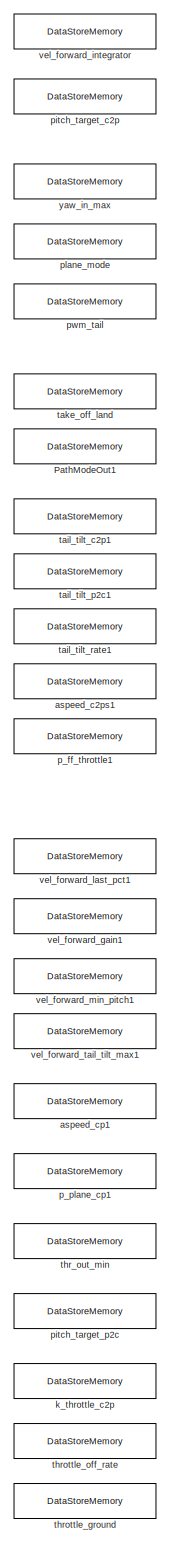
[diagram: root canvas - part 1/11, top left region]
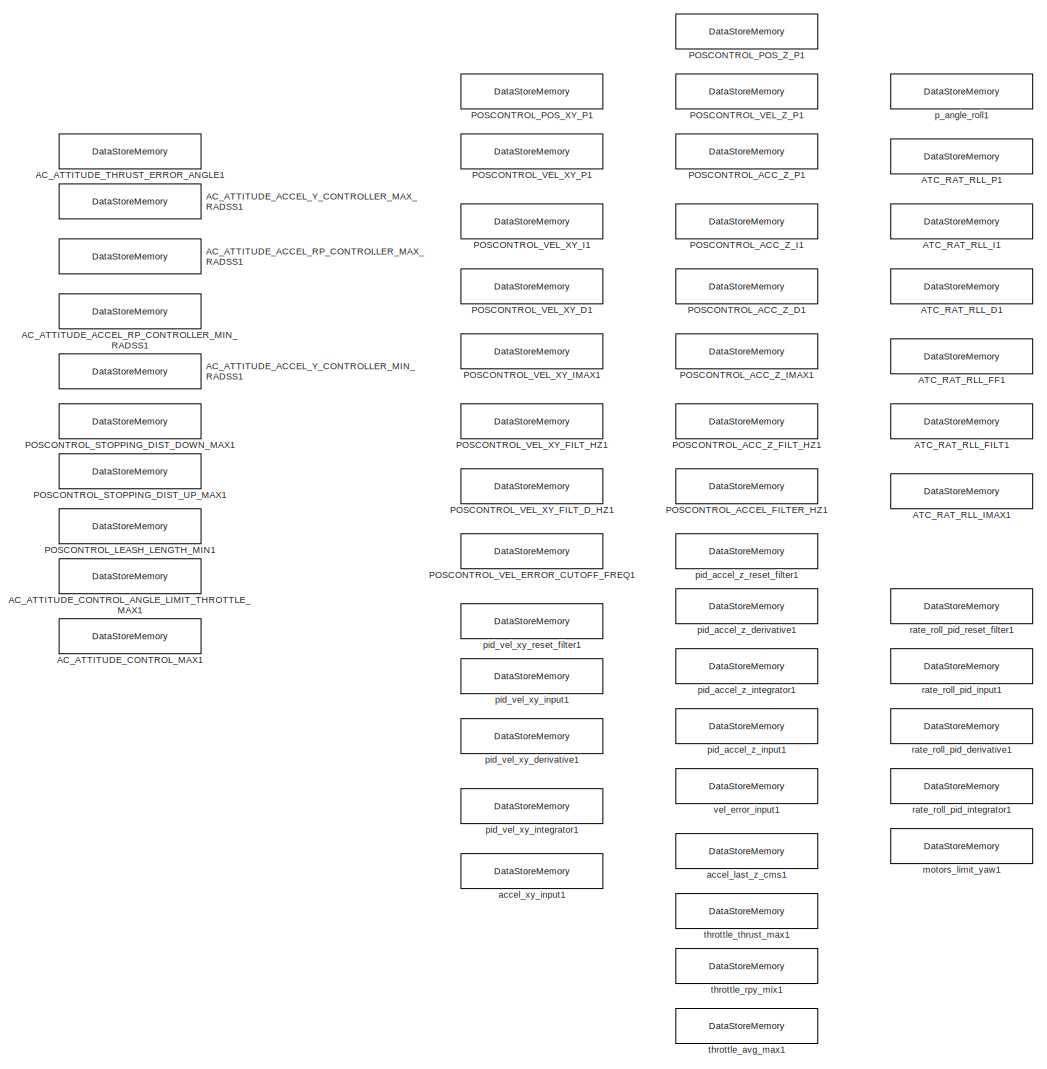
[diagram: root canvas - part 2/11, top center region]
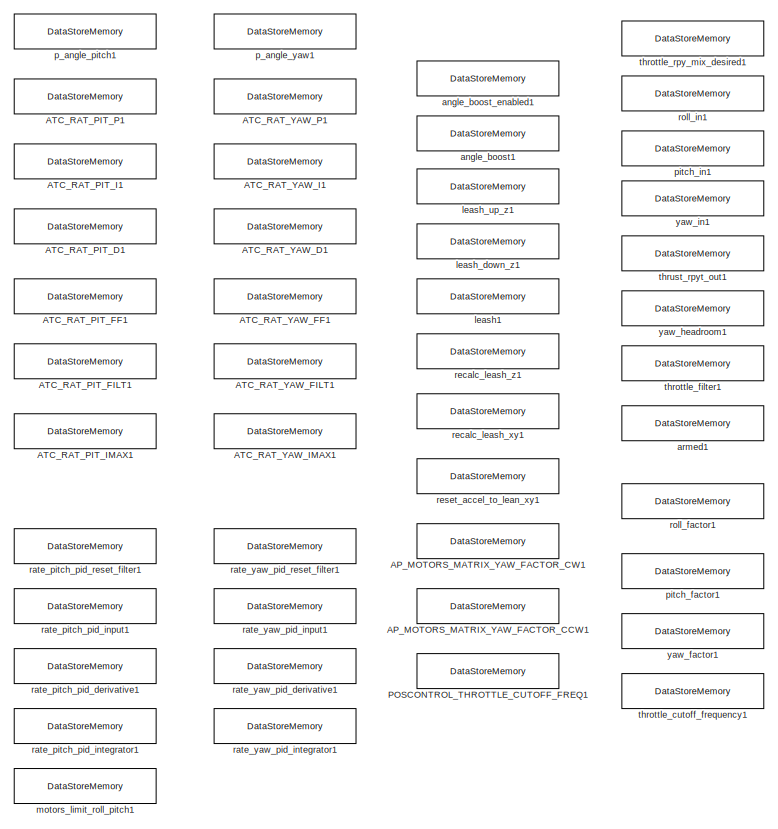
[diagram: root canvas - part 3/11, top right region]
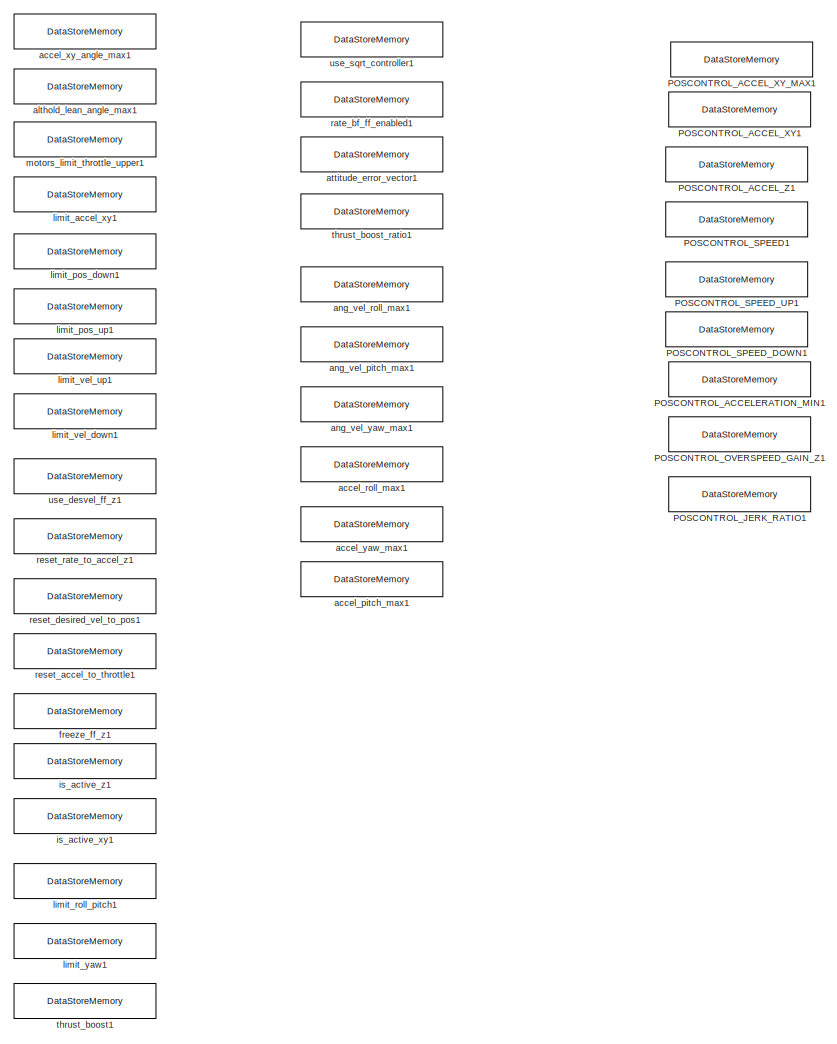
[diagram: root canvas - part 4/11, top center region]
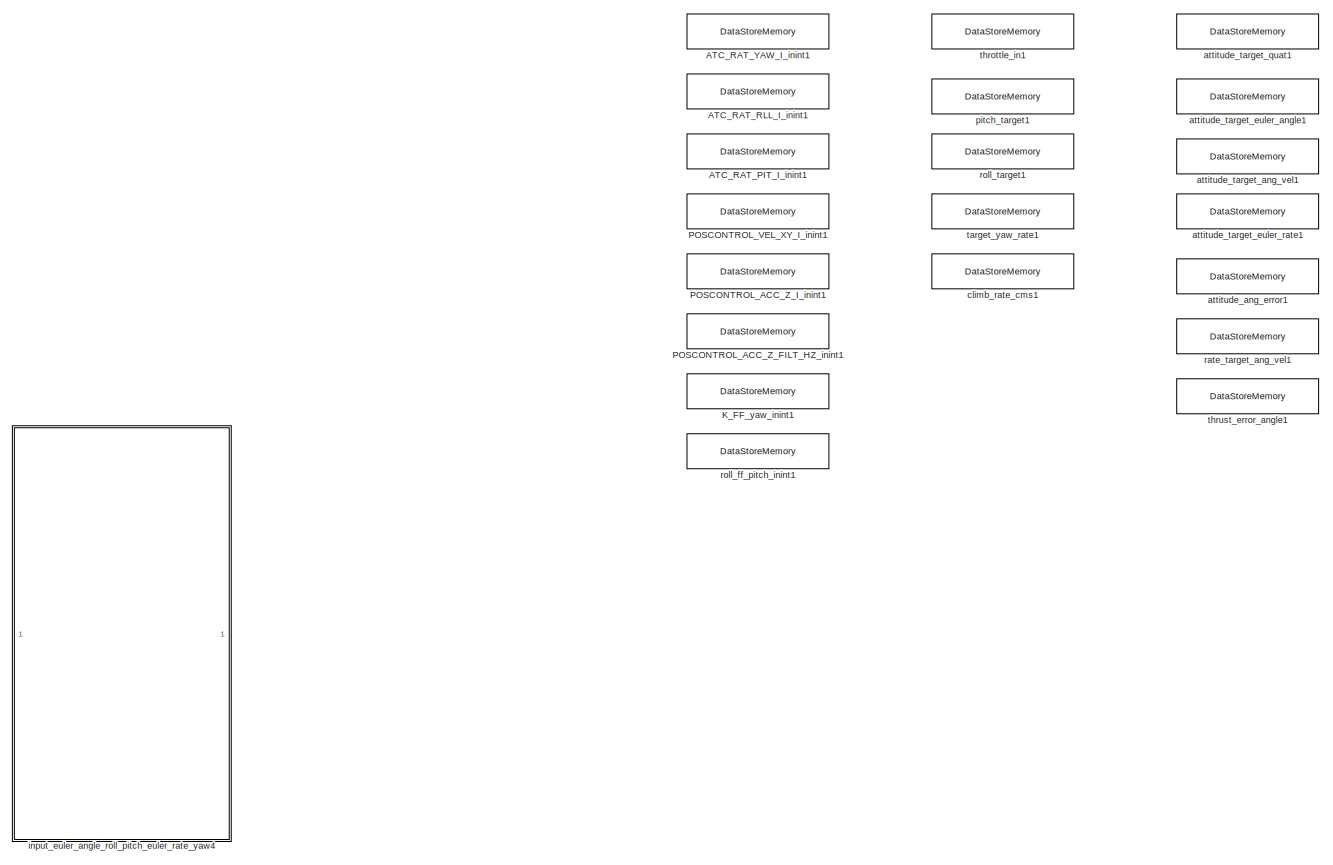
[diagram: root canvas - part 5/11, top left region]
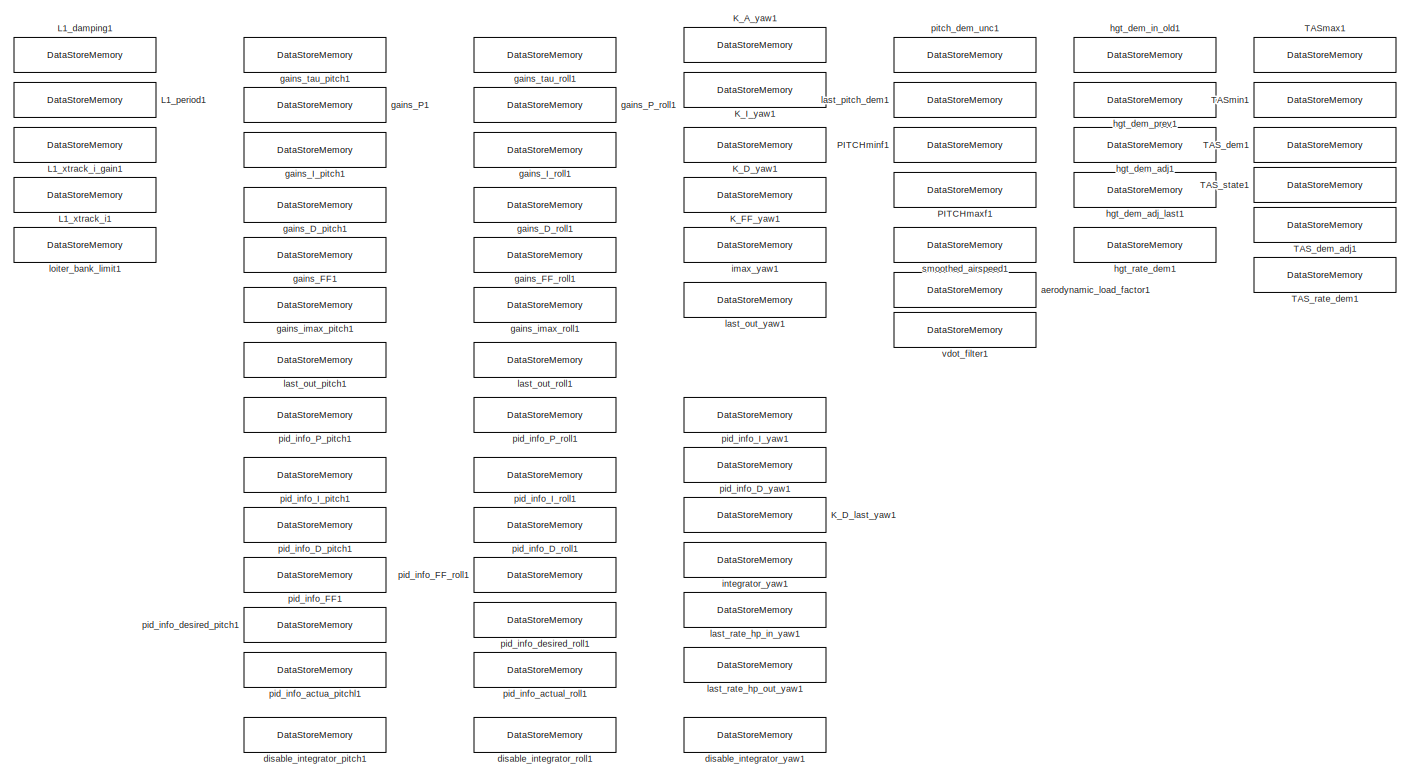
[diagram: root canvas - part 6/11, middle right region]
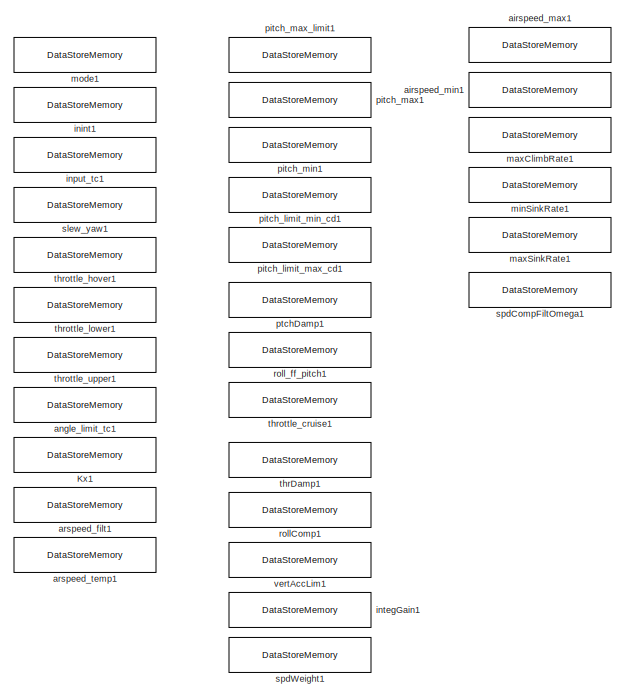
[diagram: root canvas - part 7/11, central region]
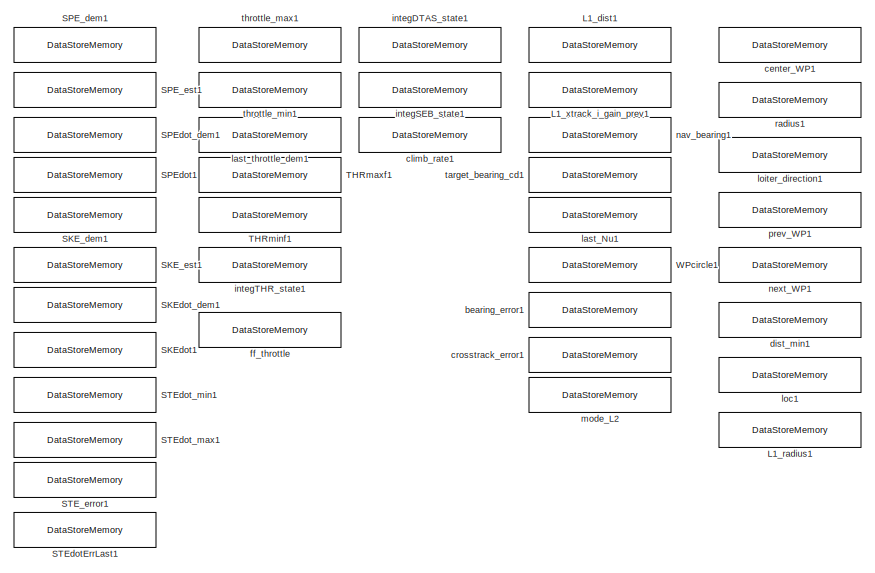
[diagram: root canvas - part 8/11, middle right region]
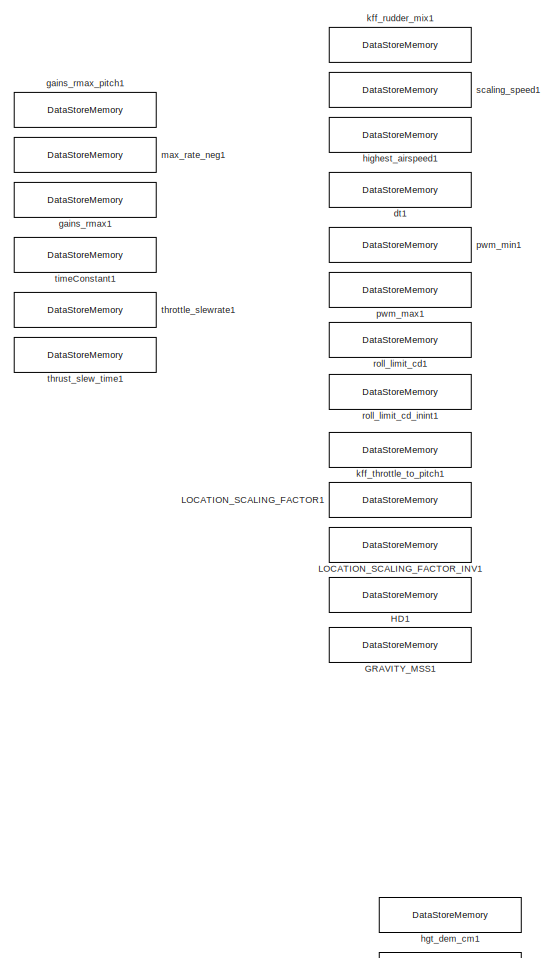
[diagram: root canvas - part 9/11, central region]
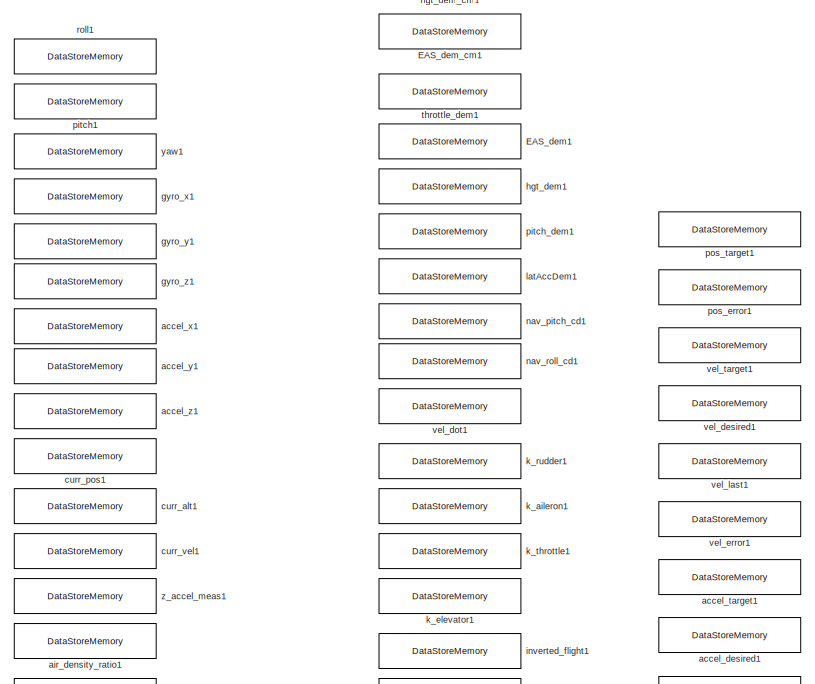
[diagram: root canvas - part 10/11, bottom center region]
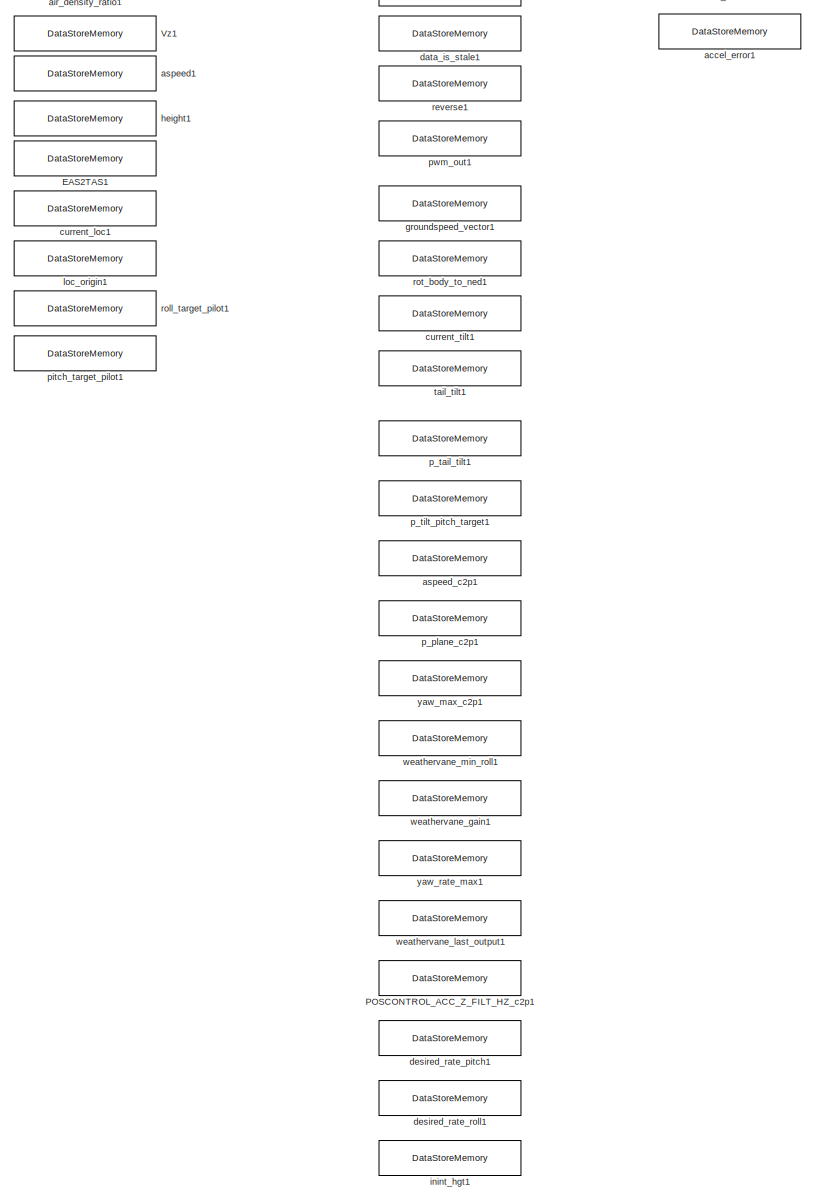
[diagram: root canvas - part 11/11, bottom center region]
MODEL slx_66ffff025384
KIND model
CONFIG AbsTol = auto
CONFIG EnableMultiTasking = off
CONFIG FixedStep = dt
CONFIG MaxStep = auto
CONFIG MinStep = auto
CONFIG RelTol = 1e-3
CONFIG SampleTimeConstraint = Unconstrained
CONFIG Solver = ode1
CONFIG SolverName = ode1
CONFIG StartTime = 0.0
CONFIG StopTime = 20
BLOCK [DataStoreMemory] AC_ATTITUDE_ACCEL_RP_CONTROLLER_MAX_RADSS1
  DataStoreName = AC_ATTITUDE_ACCEL_RP_CONTROLLER_MAX_RADSS
  InitialValue = AC_ATTITUDE_ACCEL_RP_CONTROLLER_MAX_RADSS
  OutDataTypeStr = double
  ReadBeforeWriteMsg = warning
  ShowAdditionalParam = off
  SignalType = real
  VectorParams1D = off
  WriteAfterReadMsg = warning
  WriteAfterWriteMsg = warning
BLOCK [DataStoreMemory] AC_ATTITUDE_ACCEL_RP_CONTROLLER_MIN_RADSS1
  DataStoreName = AC_ATTITUDE_ACCEL_RP_CONTROLLER_MIN_RADSS
  InitialValue = AC_ATTITUDE_ACCEL_RP_CONTROLLER_MIN_RADSS
  OutDataTypeStr = double
  ReadBeforeWriteMsg = warning
  ShowAdditionalParam = off
  SignalType = real
  VectorParams1D = off
  WriteAfterReadMsg = warning
  WriteAfterWriteMsg = warning
BLOCK [DataStoreMemory] AC_ATTITUDE_ACCEL_Y_CONTROLLER_MAX_RADSS1
  DataStoreName = AC_ATTITUDE_ACCEL_Y_CONTROLLER_MAX_RADSS
  InitialValue = AC_ATTITUDE_ACCEL_Y_CONTROLLER_MAX_RADSS
  OutDataTypeStr = double
  ReadBeforeWriteMsg = warning
  ShowAdditionalParam = off
  SignalType = real
  WriteAfterReadMsg = warning
  WriteAfterWriteMsg = warning
BLOCK [DataStoreMemory] AC_ATTITUDE_ACCEL_Y_CONTROLLER_MIN_RADSS1
  DataStoreName = AC_ATTITUDE_ACCEL_Y_CONTROLLER_MIN_RADSS
  InitialValue = AC_ATTITUDE_ACCEL_Y_CONTROLLER_MIN_RADSS
  OutDataTypeStr = double
  ReadBeforeWriteMsg = warning
  ShowAdditionalParam = off
  SignalType = real
  VectorParams1D = off
  WriteAfterReadMsg = warning
  WriteAfterWriteMsg = warning
BLOCK [DataStoreMemory] AC_ATTITUDE_CONTROL_ANGLE_LIMIT_THROTTLE_MAX1
  DataStoreName = AC_ATTITUDE_CONTROL_ANGLE_LIMIT_THROTTLE_MAX
  InitialValue = AC_ATTITUDE_CONTROL_ANGLE_LIMIT_THROTTLE_MAX
  OutDataTypeStr = double
  ReadBeforeWriteMsg = warning
  ShowAdditionalParam = off
  SignalType = real
  VectorParams1D = off
  WriteAfterReadMsg = warning
  WriteAfterWriteMsg = warning
BLOCK [DataStoreMemory] AC_ATTITUDE_CONTROL_MAX1
  DataStoreName = AC_ATTITUDE_CONTROL_MAX
  InitialValue = AC_ATTITUDE_CONTROL_MAX
  OutDataTypeStr = double
  ReadBeforeWriteMsg = warning
  ShowAdditionalParam = off
  SignalType = real
  VectorParams1D = off
  WriteAfterReadMsg = warning
  WriteAfterWriteMsg = warning
BLOCK [DataStoreMemory] AC_ATTITUDE_THRUST_ERROR_ANGLE1
  DataStoreName = AC_ATTITUDE_THRUST_ERROR_ANGLE
  InitialValue = AC_ATTITUDE_THRUST_ERROR_ANGLE
  OutDataTypeStr = double
  ReadBeforeWriteMsg = warning
  ShowAdditionalParam = off
  SignalType = real
  WriteAfterReadMsg = warning
  WriteAfterWriteMsg = warning
BLOCK [DataStoreMemory] AP_MOTORS_MATRIX_YAW_FACTOR_CCW1
  DataStoreName = AP_MOTORS_MATRIX_YAW_FACTOR_CCW
  InitialValue = AP_MOTORS_MATRIX_YAW_FACTOR_CCW
  OutDataTypeStr = double
  ReadBeforeWriteMsg = warning
  ShowAdditionalParam = off
  SignalType = real
  VectorParams1D = off
  WriteAfterReadMsg = warning
  WriteAfterWriteMsg = warning
BLOCK [DataStoreMemory] AP_MOTORS_MATRIX_YAW_FACTOR_CW1
  DataStoreName = AP_MOTORS_MATRIX_YAW_FACTOR_CW
  InitialValue = AP_MOTORS_MATRIX_YAW_FACTOR_CW
  OutDataTypeStr = double
  ReadBeforeWriteMsg = warning
  ShowAdditionalParam = off
  SignalType = real
  VectorParams1D = off
  WriteAfterReadMsg = warning
  WriteAfterWriteMsg = warning
BLOCK [DataStoreMemory] ATC_RAT_PIT_D1
  DataStoreName = ATC_RAT_PIT_D
  InitialValue = ATC_RAT_PIT_D
  OutDataTypeStr = double
  ReadBeforeWriteMsg = warning
  ShowAdditionalParam = off
  SignalType = real
  VectorParams1D = off
  WriteAfterReadMsg = warning
  WriteAfterWriteMsg = warning
BLOCK [DataStoreMemory] ATC_RAT_PIT_FF1
  DataStoreName = ATC_RAT_PIT_FF
  InitialValue = ATC_RAT_PIT_FF
  OutDataTypeStr = double
  ReadBeforeWriteMsg = warning
  ShowAdditionalParam = off
  SignalType = real
  VectorParams1D = off
  WriteAfterReadMsg = warning
  WriteAfterWriteMsg = warning
BLOCK [DataStoreMemory] ATC_RAT_PIT_FILT1
  DataStoreName = ATC_RAT_PIT_FILT
  InitialValue = ATC_RAT_PIT_FILT
  OutDataTypeStr = double
  ReadBeforeWriteMsg = warning
  ShowAdditionalParam = off
  SignalType = real
  VectorParams1D = off
  WriteAfterReadMsg = warning
  WriteAfterWriteMsg = warning
BLOCK [DataStoreMemory] ATC_RAT_PIT_I1
  DataStoreName = ATC_RAT_PIT_I
  InitialValue = ATC_RAT_PIT_I
  OutDataTypeStr = double
  ReadBeforeWriteMsg = warning
  ShowAdditionalParam = off
  SignalType = real
  VectorParams1D = off
  WriteAfterReadMsg = warning
  WriteAfterWriteMsg = warning
BLOCK [DataStoreMemory] ATC_RAT_PIT_IMAX1
  DataStoreName = ATC_RAT_PIT_IMAX
  InitialValue = ATC_RAT_PIT_IMAX
  OutDataTypeStr = double
  ReadBeforeWriteMsg = warning
  ShowAdditionalParam = off
  SignalType = real
  VectorParams1D = off
  WriteAfterReadMsg = warning
  WriteAfterWriteMsg = warning
BLOCK [DataStoreMemory] ATC_RAT_PIT_I_inint1
  DataStoreName = ATC_RAT_PIT_I_inint
  InitialValue = ATC_RAT_PIT_I_inint
  OutDataTypeStr = double
  ReadBeforeWriteMsg = warning
  ShowAdditionalParam = off
  SignalType = real
  VectorParams1D = off
  WriteAfterReadMsg = warning
  WriteAfterWriteMsg = warning
BLOCK [DataStoreMemory] ATC_RAT_PIT_P1
  DataStoreName = ATC_RAT_PIT_P
  InitialValue = ATC_RAT_PIT_P
  OutDataTypeStr = double
  ReadBeforeWriteMsg = warning
  ShowAdditionalParam = off
  SignalType = real
  VectorParams1D = off
  WriteAfterReadMsg = warning
  WriteAfterWriteMsg = warning
BLOCK [DataStoreMemory] ATC_RAT_RLL_D1
  DataStoreName = ATC_RAT_RLL_D
  InitialValue = ATC_RAT_RLL_D
  OutDataTypeStr = double
  ReadBeforeWriteMsg = warning
  ShowAdditionalParam = off
  SignalType = real
  VectorParams1D = off
  WriteAfterReadMsg = warning
  WriteAfterWriteMsg = warning
BLOCK [DataStoreMemory] ATC_RAT_RLL_FF1
  DataStoreName = ATC_RAT_RLL_FF
  InitialValue = ATC_RAT_RLL_FF
  OutDataTypeStr = double
  ReadBeforeWriteMsg = warning
  ShowAdditionalParam = off
  SignalType = real
  VectorParams1D = off
  WriteAfterReadMsg = warning
  WriteAfterWriteMsg = warning
BLOCK [DataStoreMemory] ATC_RAT_RLL_FILT1
  DataStoreName = ATC_RAT_RLL_FILT
  InitialValue = ATC_RAT_RLL_FILT
  OutDataTypeStr = double
  ReadBeforeWriteMsg = warning
  ShowAdditionalParam = off
  SignalType = real
  VectorParams1D = off
  WriteAfterReadMsg = warning
  WriteAfterWriteMsg = warning
BLOCK [DataStoreMemory] ATC_RAT_RLL_I1
  DataStoreName = ATC_RAT_RLL_I
  InitialValue = ATC_RAT_RLL_I
  OutDataTypeStr = double
  ReadBeforeWriteMsg = warning
  ShowAdditionalParam = off
  SignalType = real
  VectorParams1D = off
  WriteAfterReadMsg = warning
  WriteAfterWriteMsg = warning
BLOCK [DataStoreMemory] ATC_RAT_RLL_IMAX1
  DataStoreName = ATC_RAT_RLL_IMAX
  InitialValue = ATC_RAT_RLL_IMAX
  OutDataTypeStr = double
  ReadBeforeWriteMsg = warning
  ShowAdditionalParam = off
  SignalType = real
  VectorParams1D = off
  WriteAfterReadMsg = warning
  WriteAfterWriteMsg = warning
BLOCK [DataStoreMemory] ATC_RAT_RLL_I_inint1
  DataStoreName = ATC_RAT_RLL_I_inint
  InitialValue = ATC_RAT_RLL_I_inint
  OutDataTypeStr = double
  ReadBeforeWriteMsg = warning
  ShowAdditionalParam = off
  SignalType = real
  VectorParams1D = off
  WriteAfterReadMsg = warning
  WriteAfterWriteMsg = warning
BLOCK [DataStoreMemory] ATC_RAT_RLL_P1
  DataStoreName = ATC_RAT_RLL_P
  InitialValue = ATC_RAT_RLL_P
  OutDataTypeStr = double
  ReadBeforeWriteMsg = warning
  ShowAdditionalParam = off
  SignalType = real
  VectorParams1D = off
  WriteAfterReadMsg = warning
  WriteAfterWriteMsg = warning
BLOCK [DataStoreMemory] ATC_RAT_YAW_D1
  DataStoreName = ATC_RAT_YAW_D
  InitialValue = ATC_RAT_YAW_D
  OutDataTypeStr = double
  ReadBeforeWriteMsg = warning
  ShowAdditionalParam = off
  SignalType = real
  VectorParams1D = off
  WriteAfterReadMsg = warning
  WriteAfterWriteMsg = warning
BLOCK [DataStoreMemory] ATC_RAT_YAW_FF1
  DataStoreName = ATC_RAT_YAW_FF
  InitialValue = ATC_RAT_YAW_FF
  OutDataTypeStr = double
  ReadBeforeWriteMsg = warning
  ShowAdditionalParam = off
  SignalType = real
  VectorParams1D = off
  WriteAfterReadMsg = warning
  WriteAfterWriteMsg = warning
BLOCK [DataStoreMemory] ATC_RAT_YAW_FILT1
  DataStoreName = ATC_RAT_YAW_FILT
  InitialValue = ATC_RAT_YAW_FILT
  OutDataTypeStr = double
  ReadBeforeWriteMsg = warning
  ShowAdditionalParam = off
  SignalType = real
  VectorParams1D = off
  WriteAfterReadMsg = warning
  WriteAfterWriteMsg = warning
BLOCK [DataStoreMemory] ATC_RAT_YAW_I1
  DataStoreName = ATC_RAT_YAW_I
  InitialValue = ATC_RAT_YAW_I
  OutDataTypeStr = double
  ReadBeforeWriteMsg = warning
  ShowAdditionalParam = off
  SignalType = real
  VectorParams1D = off
  WriteAfterReadMsg = warning
  WriteAfterWriteMsg = warning
BLOCK [DataStoreMemory] ATC_RAT_YAW_IMAX1
  DataStoreName = ATC_RAT_YAW_IMAX
  InitialValue = ATC_RAT_YAW_IMAX
  OutDataTypeStr = double
  ReadBeforeWriteMsg = warning
  ShowAdditionalParam = off
  SignalType = real
  VectorParams1D = off
  WriteAfterReadMsg = warning
  WriteAfterWriteMsg = warning
BLOCK [DataStoreMemory] ATC_RAT_YAW_I_inint1
  DataStoreName = ATC_RAT_YAW_I_inint
  InitialValue = ATC_RAT_YAW_I_inint
  OutDataTypeStr = double
  ReadBeforeWriteMsg = warning
  ShowAdditionalParam = off
  SignalType = real
  VectorParams1D = off
  WriteAfterReadMsg = warning
  WriteAfterWriteMsg = warning
BLOCK [DataStoreMemory] ATC_RAT_YAW_P1
  DataStoreName = ATC_RAT_YAW_P
  InitialValue = ATC_RAT_YAW_P
  OutDataTypeStr = double
  ReadBeforeWriteMsg = warning
  ShowAdditionalParam = off
  SignalType = real
  VectorParams1D = off
  WriteAfterReadMsg = warning
  WriteAfterWriteMsg = warning
BLOCK [DataStoreMemory] EAS2TAS1
  DataStoreName = EAS2TAS
  InitialValue = EAS2TAS
  OutDataTypeStr = double
  ReadBeforeWriteMsg = warning
  ShowAdditionalParam = off
  SignalType = real
  VectorParams1D = off
  WriteAfterReadMsg = warning
  WriteAfterWriteMsg = warning
BLOCK [DataStoreMemory] EAS_dem1
  DataStoreName = EAS_dem
  InitialValue = EAS_dem
  OutDataTypeStr = double
  ReadBeforeWriteMsg = warning
  ShowAdditionalParam = off
  SignalType = real
  VectorParams1D = off
  WriteAfterReadMsg = warning
  WriteAfterWriteMsg = warning
BLOCK [DataStoreMemory] EAS_dem_cm1
  DataStoreName = EAS_dem_cm
  InitialValue = EAS_dem_cm
  OutDataTypeStr = double
  ReadBeforeWriteMsg = warning
  ShowAdditionalParam = off
  SignalType = real
  VectorParams1D = off
  WriteAfterReadMsg = warning
  WriteAfterWriteMsg = warning
BLOCK [DataStoreMemory] GRAVITY_MSS1
  DataStoreName = GRAVITY_MSS
  InitialValue = GRAVITY_MSS
  OutDataTypeStr = double
  ReadBeforeWriteMsg = warning
  ShowAdditionalParam = off
  SignalType = real
  VectorParams1D = off
  WriteAfterReadMsg = warning
  WriteAfterWriteMsg = warning
BLOCK [DataStoreMemory] HD1
  DataStoreName = HD
  InitialValue = HD
  OutDataTypeStr = double
  ReadBeforeWriteMsg = warning
  ShowAdditionalParam = off
  SignalType = real
  WriteAfterReadMsg = warning
  WriteAfterWriteMsg = warning
BLOCK [DataStoreMemory] K_A_yaw1
  DataStoreName = K_A_yaw
  InitialValue = K_A_yaw
  OutDataTypeStr = double
  ReadBeforeWriteMsg = warning
  ShowAdditionalParam = off
  SignalType = real
  WriteAfterReadMsg = warning
  WriteAfterWriteMsg = warning
BLOCK [DataStoreMemory] K_D_last_yaw1
  DataStoreName = K_D_last_yaw
  InitialValue = K_D_last_yaw
  OutDataTypeStr = double
  ReadBeforeWriteMsg = warning
  ShowAdditionalParam = off
  SignalType = real
  WriteAfterReadMsg = warning
  WriteAfterWriteMsg = warning
BLOCK [DataStoreMemory] K_D_yaw1
  DataStoreName = K_D_yaw
  InitialValue = K_D_yaw
  OutDataTypeStr = double
  ReadBeforeWriteMsg = warning
  ShowAdditionalParam = off
  SignalType = real
  WriteAfterReadMsg = warning
  WriteAfterWriteMsg = warning
BLOCK [DataStoreMemory] K_FF_yaw1
  DataStoreName = K_FF_yaw
  InitialValue = K_FF_yaw
  OutDataTypeStr = double
  ReadBeforeWriteMsg = warning
  ShowAdditionalParam = off
  SignalType = real
  WriteAfterReadMsg = warning
  WriteAfterWriteMsg = warning
BLOCK [DataStoreMemory] K_FF_yaw_inint1
  DataStoreName = K_FF_yaw_inint
  InitialValue = K_FF_yaw_inint
  OutDataTypeStr = double
  ReadBeforeWriteMsg = warning
  ShowAdditionalParam = off
  SignalType = real
  VectorParams1D = off
  WriteAfterReadMsg = warning
  WriteAfterWriteMsg = warning
BLOCK [DataStoreMemory] K_I_yaw1
  DataStoreName = K_I_yaw
  InitialValue = K_I_yaw
  OutDataTypeStr = double
  ReadBeforeWriteMsg = warning
  ShowAdditionalParam = off
  SignalType = real
  WriteAfterReadMsg = warning
  WriteAfterWriteMsg = warning
BLOCK [DataStoreMemory] Kx1
  DataStoreName = Kx
  InitialValue = Kx
  OutDataTypeStr = double
  ReadBeforeWriteMsg = warning
  ShowAdditionalParam = off
  SignalType = real
  VectorParams1D = off
  WriteAfterReadMsg = warning
  WriteAfterWriteMsg = warning
BLOCK [DataStoreMemory] L1_damping1
  DataStoreName = L1_damping
  InitialValue = L1_damping
  OutDataTypeStr = double
  ReadBeforeWriteMsg = warning
  ShowAdditionalParam = off
  SignalType = real
  VectorParams1D = off
  WriteAfterReadMsg = warning
  WriteAfterWriteMsg = warning
BLOCK [DataStoreMemory] L1_dist1
  DataStoreName = L1_dist
  InitialValue = L1_dist
  OutDataTypeStr = double
  ReadBeforeWriteMsg = warning
  ShowAdditionalParam = off
  SignalType = real
  VectorParams1D = off
  WriteAfterReadMsg = warning
  WriteAfterWriteMsg = warning
BLOCK [DataStoreMemory] L1_period1
  DataStoreName = L1_period
  InitialValue = L1_period
  OutDataTypeStr = double
  ReadBeforeWriteMsg = warning
  ShowAdditionalParam = off
  SignalType = real
  VectorParams1D = off
  WriteAfterReadMsg = warning
  WriteAfterWriteMsg = warning
BLOCK [DataStoreMemory] L1_radius1
  DataStoreName = L1_radius
  InitialValue = L1_radius
  OutDataTypeStr = double
  ReadBeforeWriteMsg = warning
  ShowAdditionalParam = off
  SignalType = real
  VectorParams1D = off
  WriteAfterReadMsg = warning
  WriteAfterWriteMsg = warning
BLOCK [DataStoreMemory] L1_xtrack_i1
  DataStoreName = L1_xtrack_i
  InitialValue = L1_xtrack_i
  OutDataTypeStr = double
  ReadBeforeWriteMsg = warning
  ShowAdditionalParam = off
  SignalType = real
  VectorParams1D = off
  WriteAfterReadMsg = warning
  WriteAfterWriteMsg = warning
BLOCK [DataStoreMemory] L1_xtrack_i_gain1
  DataStoreName = L1_xtrack_i_gain
  InitialValue = L1_xtrack_i_gain
  OutDataTypeStr = double
  ReadBeforeWriteMsg = warning
  ShowAdditionalParam = off
  SignalType = real
  VectorParams1D = off
  WriteAfterReadMsg = warning
  WriteAfterWriteMsg = warning
BLOCK [DataStoreMemory] L1_xtrack_i_gain_prev1
  DataStoreName = L1_xtrack_i_gain_prev
  InitialValue = L1_xtrack_i_gain_prev
  OutDataTypeStr = double
  ReadBeforeWriteMsg = warning
  ShowAdditionalParam = off
  SignalType = real
  VectorParams1D = off
  WriteAfterReadMsg = warning
  WriteAfterWriteMsg = warning
BLOCK [DataStoreMemory] LOCATION_SCALING_FACTOR1
  DataStoreName = LOCATION_SCALING_FACTOR
  InitialValue = LOCATION_SCALING_FACTOR
  OutDataTypeStr = double
  ReadBeforeWriteMsg = warning
  ShowAdditionalParam = off
  SignalType = real
  VectorParams1D = off
  WriteAfterReadMsg = warning
  WriteAfterWriteMsg = warning
BLOCK [DataStoreMemory] LOCATION_SCALING_FACTOR_INV1
  DataStoreName = LOCATION_SCALING_FACTOR_INV
  InitialValue = LOCATION_SCALING_FACTOR_INV
  OutDataTypeStr = double
  ReadBeforeWriteMsg = warning
  ShowAdditionalParam = off
  SignalType = real
  VectorParams1D = off
  WriteAfterReadMsg = warning
  WriteAfterWriteMsg = warning
BLOCK [DataStoreMemory] PITCHmaxf1
  DataStoreName = PITCHmaxf
  InitialValue = PITCHmaxf
  OutDataTypeStr = double
  ReadBeforeWriteMsg = warning
  ShowAdditionalParam = off
  SignalType = real
  VectorParams1D = off
  WriteAfterReadMsg = warning
  WriteAfterWriteMsg = warning
BLOCK [DataStoreMemory] PITCHminf1
  DataStoreName = PITCHminf
  InitialValue = PITCHminf
  OutDataTypeStr = double
  ReadBeforeWriteMsg = warning
  ShowAdditionalParam = off
  SignalType = real
  VectorParams1D = off
  WriteAfterReadMsg = warning
  WriteAfterWriteMsg = warning
BLOCK [DataStoreMemory] POSCONTROL_ACCELERATION_MIN1
  DataStoreName = POSCONTROL_ACCELERATION_MIN
  InitialValue = POSCONTROL_ACCELERATION_MIN
  OutDataTypeStr = double
  ReadBeforeWriteMsg = warning
  ShowAdditionalParam = off
  SignalType = real
  WriteAfterReadMsg = warning
  WriteAfterWriteMsg = warning
BLOCK [DataStoreMemory] POSCONTROL_ACCEL_FILTER_HZ1
  DataStoreName = POSCONTROL_ACCEL_FILTER_HZ
  InitialValue = POSCONTROL_ACCEL_FILTER_HZ
  OutDataTypeStr = double
  ReadBeforeWriteMsg = warning
  ShowAdditionalParam = off
  SignalType = real
  VectorParams1D = off
  WriteAfterReadMsg = warning
  WriteAfterWriteMsg = warning
BLOCK [DataStoreMemory] POSCONTROL_ACCEL_XY1
  DataStoreName = POSCONTROL_ACCEL_XY
  InitialValue = POSCONTROL_ACCEL_XY
  OutDataTypeStr = double
  ReadBeforeWriteMsg = warning
  ShowAdditionalParam = off
  SignalType = real
  VectorParams1D = off
  WriteAfterReadMsg = warning
  WriteAfterWriteMsg = warning
BLOCK [DataStoreMemory] POSCONTROL_ACCEL_XY_MAX1
  DataStoreName = POSCONTROL_ACCEL_XY_MAX
  InitialValue = POSCONTROL_ACCEL_XY_MAX
  OutDataTypeStr = double
  ReadBeforeWriteMsg = warning
  ShowAdditionalParam = off
  SignalType = real
  VectorParams1D = off
  WriteAfterReadMsg = warning
  WriteAfterWriteMsg = warning
BLOCK [DataStoreMemory] POSCONTROL_ACCEL_Z1
  DataStoreName = POSCONTROL_ACCEL_Z
  InitialValue = POSCONTROL_ACCEL_Z
  OutDataTypeStr = double
  ReadBeforeWriteMsg = warning
  ShowAdditionalParam = off
  SignalType = real
  WriteAfterReadMsg = warning
  WriteAfterWriteMsg = warning
BLOCK [DataStoreMemory] POSCONTROL_ACC_Z_D1
  DataStoreName = POSCONTROL_ACC_Z_D
  InitialValue = POSCONTROL_ACC_Z_D
  OutDataTypeStr = double
  ReadBeforeWriteMsg = warning
  ShowAdditionalParam = off
  SignalType = real
  VectorParams1D = off
  WriteAfterReadMsg = warning
  WriteAfterWriteMsg = warning
BLOCK [DataStoreMemory] POSCONTROL_ACC_Z_FILT_HZ1
  DataStoreName = POSCONTROL_ACC_Z_FILT_HZ
  InitialValue = POSCONTROL_ACC_Z_FILT_HZ
  OutDataTypeStr = double
  ReadBeforeWriteMsg = warning
  ShowAdditionalParam = off
  SignalType = real
  VectorParams1D = off
  WriteAfterReadMsg = warning
  WriteAfterWriteMsg = warning
BLOCK [DataStoreMemory] POSCONTROL_ACC_Z_FILT_HZ_c2p1
  DataStoreName = POSCONTROL_ACC_Z_FILT_HZ_c2p
  InitialValue = POSCONTROL_ACC_Z_FILT_HZ_c2p
  OutDataTypeStr = double
  ReadBeforeWriteMsg = warning
  ShowAdditionalParam = off
  SignalType = real
  VectorParams1D = off
  WriteAfterReadMsg = warning
  WriteAfterWriteMsg = warning
BLOCK [DataStoreMemory] POSCONTROL_ACC_Z_FILT_HZ_inint1
  DataStoreName = POSCONTROL_ACC_Z_FILT_HZ_inint
  InitialValue = POSCONTROL_ACC_Z_FILT_HZ_inint
  OutDataTypeStr = double
  ReadBeforeWriteMsg = warning
  ShowAdditionalParam = off
  SignalType = real
  VectorParams1D = off
  WriteAfterReadMsg = warning
  WriteAfterWriteMsg = warning
BLOCK [DataStoreMemory] POSCONTROL_ACC_Z_I1
  DataStoreName = POSCONTROL_ACC_Z_I
  InitialValue = POSCONTROL_ACC_Z_I
  OutDataTypeStr = double
  ReadBeforeWriteMsg = warning
  ShowAdditionalParam = off
  SignalType = real
  VectorParams1D = off
  WriteAfterReadMsg = warning
  WriteAfterWriteMsg = warning
BLOCK [DataStoreMemory] POSCONTROL_ACC_Z_IMAX1
  DataStoreName = POSCONTROL_ACC_Z_IMAX
  InitialValue = POSCONTROL_ACC_Z_IMAX
  OutDataTypeStr = double
  ReadBeforeWriteMsg = warning
  ShowAdditionalParam = off
  SignalType = real
  VectorParams1D = off
  WriteAfterReadMsg = warning
  WriteAfterWriteMsg = warning
BLOCK [DataStoreMemory] POSCONTROL_ACC_Z_I_inint1
  DataStoreName = POSCONTROL_ACC_Z_I_inint
  InitialValue = POSCONTROL_ACC_Z_I_inint
  OutDataTypeStr = double
  ReadBeforeWriteMsg = warning
  ShowAdditionalParam = off
  SignalType = real
  VectorParams1D = off
  WriteAfterReadMsg = warning
  WriteAfterWriteMsg = warning
BLOCK [DataStoreMemory] POSCONTROL_ACC_Z_P1
  DataStoreName = POSCONTROL_ACC_Z_P
  InitialValue = POSCONTROL_ACC_Z_P
  OutDataTypeStr = double
  ReadBeforeWriteMsg = warning
  ShowAdditionalParam = off
  SignalType = real
  VectorParams1D = off
  WriteAfterReadMsg = warning
  WriteAfterWriteMsg = warning
BLOCK [DataStoreMemory] POSCONTROL_JERK_RATIO1
  DataStoreName = POSCONTROL_JERK_RATIO
  InitialValue = POSCONTROL_JERK_RATIO
  OutDataTypeStr = double
  ReadBeforeWriteMsg = warning
  ShowAdditionalParam = off
  SignalType = real
  VectorParams1D = off
  WriteAfterReadMsg = warning
  WriteAfterWriteMsg = warning
BLOCK [DataStoreMemory] POSCONTROL_LEASH_LENGTH_MIN1
  DataStoreName = POSCONTROL_LEASH_LENGTH_MIN
  InitialValue = POSCONTROL_LEASH_LENGTH_MIN
  OutDataTypeStr = double
  ReadBeforeWriteMsg = warning
  ShowAdditionalParam = off
  SignalType = real
  VectorParams1D = off
  WriteAfterReadMsg = warning
  WriteAfterWriteMsg = warning
BLOCK [DataStoreMemory] POSCONTROL_OVERSPEED_GAIN_Z1
  DataStoreName = POSCONTROL_OVERSPEED_GAIN_Z
  InitialValue = POSCONTROL_OVERSPEED_GAIN_Z
  OutDataTypeStr = double
  ReadBeforeWriteMsg = warning
  ShowAdditionalParam = off
  SignalType = real
  VectorParams1D = off
  WriteAfterReadMsg = warning
  WriteAfterWriteMsg = warning
BLOCK [DataStoreMemory] POSCONTROL_POS_XY_P1
  DataStoreName = POSCONTROL_POS_XY_P
  InitialValue = POSCONTROL_POS_XY_P
  OutDataTypeStr = double
  ReadBeforeWriteMsg = warning
  ShowAdditionalParam = off
  SignalType = real
  VectorParams1D = off
  WriteAfterReadMsg = warning
  WriteAfterWriteMsg = warning
BLOCK [DataStoreMemory] POSCONTROL_POS_Z_P1
  DataStoreName = POSCONTROL_POS_Z_P
  InitialValue = POSCONTROL_POS_Z_P
  OutDataTypeStr = double
  ReadBeforeWriteMsg = warning
  ShowAdditionalParam = off
  SignalType = real
  VectorParams1D = off
  WriteAfterReadMsg = warning
  WriteAfterWriteMsg = warning
BLOCK [DataStoreMemory] POSCONTROL_SPEED1
  DataStoreName = POSCONTROL_SPEED
  InitialValue = POSCONTROL_SPEED
  OutDataTypeStr = double
  ReadBeforeWriteMsg = warning
  ShowAdditionalParam = off
  SignalType = real
  WriteAfterReadMsg = warning
  WriteAfterWriteMsg = warning
BLOCK [DataStoreMemory] POSCONTROL_SPEED_DOWN1
  DataStoreName = POSCONTROL_SPEED_DOWN
  InitialValue = POSCONTROL_SPEED_DOWN
  OutDataTypeStr = double
  ReadBeforeWriteMsg = warning
  ShowAdditionalParam = off
  SignalType = real
  WriteAfterReadMsg = warning
  WriteAfterWriteMsg = warning
BLOCK [DataStoreMemory] POSCONTROL_SPEED_UP1
  DataStoreName = POSCONTROL_SPEED_UP
  InitialValue = POSCONTROL_SPEED_UP
  OutDataTypeStr = double
  ReadBeforeWriteMsg = warning
  ShowAdditionalParam = off
  SignalType = real
  WriteAfterReadMsg = warning
  WriteAfterWriteMsg = warning
BLOCK [DataStoreMemory] POSCONTROL_STOPPING_DIST_DOWN_MAX1
  DataStoreName = POSCONTROL_STOPPING_DIST_DOWN_MAX
  InitialValue = POSCONTROL_STOPPING_DIST_DOWN_MAX
  OutDataTypeStr = double
  ReadBeforeWriteMsg = warning
  ShowAdditionalParam = off
  SignalType = real
  VectorParams1D = off
  WriteAfterReadMsg = warning
  WriteAfterWriteMsg = warning
BLOCK [DataStoreMemory] POSCONTROL_STOPPING_DIST_UP_MAX1
  DataStoreName = POSCONTROL_STOPPING_DIST_UP_MAX
  InitialValue = POSCONTROL_STOPPING_DIST_UP_MAX
  OutDataTypeStr = double
  ReadBeforeWriteMsg = warning
  ShowAdditionalParam = off
  SignalType = real
  VectorParams1D = off
  WriteAfterReadMsg = warning
  WriteAfterWriteMsg = warning
BLOCK [DataStoreMemory] POSCONTROL_THROTTLE_CUTOFF_FREQ1
  DataStoreName = POSCONTROL_THROTTLE_CUTOFF_FREQ
  InitialValue = POSCONTROL_THROTTLE_CUTOFF_FREQ
  OutDataTypeStr = double
  ReadBeforeWriteMsg = warning
  ShowAdditionalParam = off
  SignalType = real
  VectorParams1D = off
  WriteAfterReadMsg = warning
  WriteAfterWriteMsg = warning
BLOCK [DataStoreMemory] POSCONTROL_VEL_ERROR_CUTOFF_FREQ1
  DataStoreName = POSCONTROL_VEL_ERROR_CUTOFF_FREQ
  InitialValue = POSCONTROL_VEL_ERROR_CUTOFF_FREQ
  OutDataTypeStr = double
  ReadBeforeWriteMsg = warning
  ShowAdditionalParam = off
  SignalType = real
  VectorParams1D = off
  WriteAfterReadMsg = warning
  WriteAfterWriteMsg = warning
BLOCK [DataStoreMemory] POSCONTROL_VEL_XY_D1
  DataStoreName = POSCONTROL_VEL_XY_D
  InitialValue = POSCONTROL_VEL_XY_D
  OutDataTypeStr = double
  ReadBeforeWriteMsg = warning
  ShowAdditionalParam = off
  SignalType = real
  VectorParams1D = off
  WriteAfterReadMsg = warning
  WriteAfterWriteMsg = warning
BLOCK [DataStoreMemory] POSCONTROL_VEL_XY_FILT_D_HZ1
  DataStoreName = POSCONTROL_VEL_XY_FILT_D_HZ
  InitialValue = POSCONTROL_VEL_XY_FILT_D_HZ
  OutDataTypeStr = double
  ReadBeforeWriteMsg = warning
  ShowAdditionalParam = off
  SignalType = real
  VectorParams1D = off
  WriteAfterReadMsg = warning
  WriteAfterWriteMsg = warning
BLOCK [DataStoreMemory] POSCONTROL_VEL_XY_FILT_HZ1
  DataStoreName = POSCONTROL_VEL_XY_FILT_HZ
  InitialValue = POSCONTROL_VEL_XY_FILT_HZ
  OutDataTypeStr = double
  ReadBeforeWriteMsg = warning
  ShowAdditionalParam = off
  SignalType = real
  VectorParams1D = off
  WriteAfterReadMsg = warning
  WriteAfterWriteMsg = warning
BLOCK [DataStoreMemory] POSCONTROL_VEL_XY_I1
  DataStoreName = POSCONTROL_VEL_XY_I
  InitialValue = POSCONTROL_VEL_XY_I
  OutDataTypeStr = double
  ReadBeforeWriteMsg = warning
  ShowAdditionalParam = off
  SignalType = real
  VectorParams1D = off
  WriteAfterReadMsg = warning
  WriteAfterWriteMsg = warning
BLOCK [DataStoreMemory] POSCONTROL_VEL_XY_IMAX1
  DataStoreName = POSCONTROL_VEL_XY_IMAX
  InitialValue = POSCONTROL_VEL_XY_IMAX
  OutDataTypeStr = double
  ReadBeforeWriteMsg = warning
  ShowAdditionalParam = off
  SignalType = real
  VectorParams1D = off
  WriteAfterReadMsg = warning
  WriteAfterWriteMsg = warning
BLOCK [DataStoreMemory] POSCONTROL_VEL_XY_I_inint1
  DataStoreName = POSCONTROL_VEL_XY_I_inint
  InitialValue = POSCONTROL_VEL_XY_I_inint
  OutDataTypeStr = double
  ReadBeforeWriteMsg = warning
  ShowAdditionalParam = off
  SignalType = real
  VectorParams1D = off
  WriteAfterReadMsg = warning
  WriteAfterWriteMsg = warning
BLOCK [DataStoreMemory] POSCONTROL_VEL_XY_P1
  DataStoreName = POSCONTROL_VEL_XY_P
  InitialValue = POSCONTROL_VEL_XY_P
  OutDataTypeStr = double
  ReadBeforeWriteMsg = warning
  ShowAdditionalParam = off
  SignalType = real
  VectorParams1D = off
  WriteAfterReadMsg = warning
  WriteAfterWriteMsg = warning
BLOCK [DataStoreMemory] POSCONTROL_VEL_Z_P1
  DataStoreName = POSCONTROL_VEL_Z_P
  InitialValue = POSCONTROL_VEL_Z_P
  OutDataTypeStr = double
  ReadBeforeWriteMsg = warning
  ShowAdditionalParam = off
  SignalType = real
  VectorParams1D = off
  WriteAfterReadMsg = warning
  WriteAfterWriteMsg = warning
BLOCK [DataStoreMemory] PathModeOut1
  DataStoreName = PathModeOut_sl
  InitialValue = PathModeOut_sl
  OutDataTypeStr = Bus: BUS_TASK_PATH_OutParam
  ReadBeforeWriteMsg = warning
  ShowAdditionalParam = off
  SignalType = real
  VectorParams1D = off
  WriteAfterReadMsg = warning
  WriteAfterWriteMsg = warning
BLOCK [DataStoreMemory] SKE_dem1
  DataStoreName = SKE_dem
  InitialValue = SKE_dem
  OutDataTypeStr = double
  ReadBeforeWriteMsg = warning
  ShowAdditionalParam = off
  SignalType = real
  VectorParams1D = off
  WriteAfterReadMsg = warning
  WriteAfterWriteMsg = warning
BLOCK [DataStoreMemory] SKE_est1
  DataStoreName = SKE_est
  InitialValue = SKE_est
  OutDataTypeStr = double
  ReadBeforeWriteMsg = warning
  ShowAdditionalParam = off
  SignalType = real
  VectorParams1D = off
  WriteAfterReadMsg = warning
  WriteAfterWriteMsg = warning
BLOCK [DataStoreMemory] SKEdot1
  DataStoreName = SKEdot
  InitialValue = SKEdot
  OutDataTypeStr = double
  ReadBeforeWriteMsg = warning
  ShowAdditionalParam = off
  SignalType = real
  VectorParams1D = off
  WriteAfterReadMsg = warning
  WriteAfterWriteMsg = warning
BLOCK [DataStoreMemory] SKEdot_dem1
  DataStoreName = SKEdot_dem
  InitialValue = SKEdot_dem
  OutDataTypeStr = double
  ReadBeforeWriteMsg = warning
  ShowAdditionalParam = off
  SignalType = real
  VectorParams1D = off
  WriteAfterReadMsg = warning
  WriteAfterWriteMsg = warning
BLOCK [DataStoreMemory] SPE_dem1
  DataStoreName = SPE_dem
  InitialValue = SPE_dem
  OutDataTypeStr = double
  ReadBeforeWriteMsg = warning
  ShowAdditionalParam = off
  SignalType = real
  VectorParams1D = off
  WriteAfterReadMsg = warning
  WriteAfterWriteMsg = warning
BLOCK [DataStoreMemory] SPE_est1
  DataStoreName = SPE_est
  InitialValue = SPE_est
  OutDataTypeStr = double
  ReadBeforeWriteMsg = warning
  ShowAdditionalParam = off
  SignalType = real
  VectorParams1D = off
  WriteAfterReadMsg = warning
  WriteAfterWriteMsg = warning
BLOCK [DataStoreMemory] SPEdot1
  DataStoreName = SPEdot
  InitialValue = SPEdot
  OutDataTypeStr = double
  ReadBeforeWriteMsg = warning
  ShowAdditionalParam = off
  SignalType = real
  VectorParams1D = off
  WriteAfterReadMsg = warning
  WriteAfterWriteMsg = warning
BLOCK [DataStoreMemory] SPEdot_dem1
  DataStoreName = SPEdot_dem
  InitialValue = SPEdot_dem
  OutDataTypeStr = double
  ReadBeforeWriteMsg = warning
  ShowAdditionalParam = off
  SignalType = real
  VectorParams1D = off
  WriteAfterReadMsg = warning
  WriteAfterWriteMsg = warning
BLOCK [DataStoreMemory] STE_error1
  DataStoreName = STE_error
  InitialValue = STE_error
  OutDataTypeStr = double
  ReadBeforeWriteMsg = warning
  ShowAdditionalParam = off
  SignalType = real
  VectorParams1D = off
  WriteAfterReadMsg = warning
  WriteAfterWriteMsg = warning
BLOCK [DataStoreMemory] STEdotErrLast1
  DataStoreName = STEdotErrLast
  InitialValue = STEdotErrLast
  OutDataTypeStr = double
  ReadBeforeWriteMsg = warning
  ShowAdditionalParam = off
  SignalType = real
  VectorParams1D = off
  WriteAfterReadMsg = warning
  WriteAfterWriteMsg = warning
BLOCK [DataStoreMemory] STEdot_max1
  DataStoreName = STEdot_max
  InitialValue = STEdot_max
  OutDataTypeStr = double
  ReadBeforeWriteMsg = warning
  ShowAdditionalParam = off
  SignalType = real
  VectorParams1D = off
  WriteAfterReadMsg = warning
  WriteAfterWriteMsg = warning
BLOCK [DataStoreMemory] STEdot_min1
  DataStoreName = STEdot_min
  InitialValue = STEdot_min
  OutDataTypeStr = double
  ReadBeforeWriteMsg = warning
  ShowAdditionalParam = off
  SignalType = real
  VectorParams1D = off
  WriteAfterReadMsg = warning
  WriteAfterWriteMsg = warning
BLOCK [DataStoreMemory] TAS_dem1
  DataStoreName = TAS_dem
  InitialValue = TAS_dem
  OutDataTypeStr = double
  ReadBeforeWriteMsg = warning
  ShowAdditionalParam = off
  SignalType = real
  VectorParams1D = off
  WriteAfterReadMsg = warning
  WriteAfterWriteMsg = warning
BLOCK [DataStoreMemory] TAS_dem_adj1
  DataStoreName = TAS_dem_adj
  InitialValue = TAS_dem_adj
  OutDataTypeStr = double
  ReadBeforeWriteMsg = warning
  ShowAdditionalParam = off
  SignalType = real
  VectorParams1D = off
  WriteAfterReadMsg = warning
  WriteAfterWriteMsg = warning
BLOCK [DataStoreMemory] TAS_rate_dem1
  DataStoreName = TAS_rate_dem
  InitialValue = TAS_rate_dem
  OutDataTypeStr = double
  ReadBeforeWriteMsg = warning
  ShowAdditionalParam = off
  SignalType = real
  VectorParams1D = off
  WriteAfterReadMsg = warning
  WriteAfterWriteMsg = warning
BLOCK [DataStoreMemory] TAS_state1
  DataStoreName = TAS_state
  InitialValue = TAS_state
  OutDataTypeStr = double
  ReadBeforeWriteMsg = warning
  ShowAdditionalParam = off
  SignalType = real
  VectorParams1D = off
  WriteAfterReadMsg = warning
  WriteAfterWriteMsg = warning
BLOCK [DataStoreMemory] TASmax1
  DataStoreName = TASmax
  InitialValue = TASmax
  OutDataTypeStr = double
  ReadBeforeWriteMsg = warning
  ShowAdditionalParam = off
  SignalType = real
  VectorParams1D = off
  WriteAfterReadMsg = warning
  WriteAfterWriteMsg = warning
BLOCK [DataStoreMemory] TASmin1
  DataStoreName = TASmin
  InitialValue = TASmin
  OutDataTypeStr = double
  ReadBeforeWriteMsg = warning
  ShowAdditionalParam = off
  SignalType = real
  VectorParams1D = off
  WriteAfterReadMsg = warning
  WriteAfterWriteMsg = warning
BLOCK [DataStoreMemory] THRmaxf1
  DataStoreName = THRmaxf
  InitialValue = THRmaxf
  OutDataTypeStr = double
  ReadBeforeWriteMsg = warning
  ShowAdditionalParam = off
  SignalType = real
  VectorParams1D = off
  WriteAfterReadMsg = warning
  WriteAfterWriteMsg = warning
BLOCK [DataStoreMemory] THRminf1
  DataStoreName = THRminf
  InitialValue = THRminf
  OutDataTypeStr = double
  ReadBeforeWriteMsg = warning
  ShowAdditionalParam = off
  SignalType = real
  VectorParams1D = off
  WriteAfterReadMsg = warning
  WriteAfterWriteMsg = warning
BLOCK [DataStoreMemory] Vz1
  DataStoreName = Vz
  InitialValue = Vz
  OutDataTypeStr = double
  ReadBeforeWriteMsg = warning
  ShowAdditionalParam = off
  SignalType = real
  WriteAfterReadMsg = warning
  WriteAfterWriteMsg = warning
BLOCK [DataStoreMemory] WPcircle1
  DataStoreName = WPcircle
  InitialValue = WPcircle
  OutDataTypeStr = double
  ReadBeforeWriteMsg = warning
  ShowAdditionalParam = off
  SignalType = real
  VectorParams1D = off
  WriteAfterReadMsg = warning
  WriteAfterWriteMsg = warning
BLOCK [DataStoreMemory] accel_desired1
  DataStoreName = accel_desired
  InitialValue = accel_desired
  OutDataTypeStr = double
  ReadBeforeWriteMsg = warning
  ShowAdditionalParam = off
  SignalType = real
  VectorParams1D = off
  WriteAfterReadMsg = warning
  WriteAfterWriteMsg = warning
BLOCK [DataStoreMemory] accel_error1
  DataStoreName = accel_error
  InitialValue = accel_error
  OutDataTypeStr = double
  ReadBeforeWriteMsg = warning
  ShowAdditionalParam = off
  SignalType = real
  VectorParams1D = off
  WriteAfterReadMsg = warning
  WriteAfterWriteMsg = warning
BLOCK [DataStoreMemory] accel_last_z_cms1
  DataStoreName = accel_last_z_cms
  InitialValue = accel_last_z_cms
  OutDataTypeStr = double
  ReadBeforeWriteMsg = warning
  ShowAdditionalParam = off
  SignalType = real
  VectorParams1D = off
  WriteAfterReadMsg = warning
  WriteAfterWriteMsg = warning
BLOCK [DataStoreMemory] accel_pitch_max1
  DataStoreName = accel_pitch_max
  InitialValue = accel_pitch_max
  OutDataTypeStr = double
  ReadBeforeWriteMsg = warning
  ShowAdditionalParam = off
  SignalType = real
  VectorParams1D = off
  WriteAfterReadMsg = warning
  WriteAfterWriteMsg = warning
BLOCK [DataStoreMemory] accel_roll_max1
  DataStoreName = accel_roll_max
  InitialValue = accel_roll_max
  OutDataTypeStr = double
  ReadBeforeWriteMsg = warning
  ShowAdditionalParam = off
  SignalType = real
  VectorParams1D = off
  WriteAfterReadMsg = warning
  WriteAfterWriteMsg = warning
BLOCK [DataStoreMemory] accel_target1
  DataStoreName = accel_target
  InitialValue = accel_target
  OutDataTypeStr = double
  ReadBeforeWriteMsg = warning
  ShowAdditionalParam = off
  SignalType = real
  VectorParams1D = off
  WriteAfterReadMsg = warning
  WriteAfterWriteMsg = warning
BLOCK [DataStoreMemory] accel_x1
  DataStoreName = accel_x
  InitialValue = accel_x
  OutDataTypeStr = double
  ReadBeforeWriteMsg = warning
  ShowAdditionalParam = off
  SignalType = real
  WriteAfterReadMsg = warning
  WriteAfterWriteMsg = warning
BLOCK [DataStoreMemory] accel_xy_angle_max1
  DataStoreName = accel_xy_angle_max
  InitialValue = accel_xy_angle_max
  OutDataTypeStr = double
  ReadBeforeWriteMsg = warning
  ShowAdditionalParam = off
  SignalType = real
  VectorParams1D = off
  WriteAfterReadMsg = warning
  WriteAfterWriteMsg = warning
BLOCK [DataStoreMemory] accel_xy_input1
  DataStoreName = accel_xy_input
  InitialValue = accel_xy_input
  OutDataTypeStr = double
  ReadBeforeWriteMsg = warning
  ShowAdditionalParam = off
  SignalType = real
  VectorParams1D = off
  WriteAfterReadMsg = warning
  WriteAfterWriteMsg = warning
BLOCK [DataStoreMemory] accel_y1
  DataStoreName = accel_y
  InitialValue = accel_y
  OutDataTypeStr = double
  ReadBeforeWriteMsg = warning
  ShowAdditionalParam = off
  SignalType = real
  WriteAfterReadMsg = warning
  WriteAfterWriteMsg = warning
BLOCK [DataStoreMemory] accel_yaw_max1
  DataStoreName = accel_yaw_max
  InitialValue = accel_yaw_max
  OutDataTypeStr = double
  ReadBeforeWriteMsg = warning
  ShowAdditionalParam = off
  SignalType = real
  VectorParams1D = off
  WriteAfterReadMsg = warning
  WriteAfterWriteMsg = warning
BLOCK [DataStoreMemory] accel_z1
  DataStoreName = accel_z
  InitialValue = accel_z
  OutDataTypeStr = double
  ReadBeforeWriteMsg = warning
  ShowAdditionalParam = off
  SignalType = real
  WriteAfterReadMsg = warning
  WriteAfterWriteMsg = warning
BLOCK [DataStoreMemory] aerodynamic_load_factor1
  DataStoreName = aerodynamic_load_factor
  InitialValue = aerodynamic_load_factor
  OutDataTypeStr = double
  ReadBeforeWriteMsg = warning
  ShowAdditionalParam = off
  SignalType = real
  WriteAfterReadMsg = warning
  WriteAfterWriteMsg = warning
BLOCK [DataStoreMemory] air_density_ratio1
  DataStoreName = air_density_ratio
  InitialValue = air_density_ratio
  OutDataTypeStr = double
  ReadBeforeWriteMsg = warning
  ShowAdditionalParam = off
  SignalType = real
  VectorParams1D = off
  WriteAfterReadMsg = warning
  WriteAfterWriteMsg = warning
BLOCK [DataStoreMemory] airspeed_max1
  DataStoreName = airspeed_max
  InitialValue = airspeed_max
  OutDataTypeStr = double
  ReadBeforeWriteMsg = warning
  ShowAdditionalParam = off
  SignalType = real
  VectorParams1D = off
  WriteAfterReadMsg = warning
  WriteAfterWriteMsg = warning
BLOCK [DataStoreMemory] airspeed_min1
  DataStoreName = airspeed_min
  InitialValue = airspeed_min
  OutDataTypeStr = double
  ReadBeforeWriteMsg = warning
  ShowAdditionalParam = off
  SignalType = real
  VectorParams1D = off
  WriteAfterReadMsg = warning
  WriteAfterWriteMsg = warning
BLOCK [DataStoreMemory] althold_lean_angle_max1
  DataStoreName = althold_lean_angle_max
  InitialValue = althold_lean_angle_max
  OutDataTypeStr = double
  ReadBeforeWriteMsg = warning
  ShowAdditionalParam = off
  SignalType = real
  VectorParams1D = off
  WriteAfterReadMsg = warning
  WriteAfterWriteMsg = warning
BLOCK [DataStoreMemory] ang_vel_pitch_max1
  DataStoreName = ang_vel_pitch_max
  InitialValue = ang_vel_pitch_max
  OutDataTypeStr = double
  ReadBeforeWriteMsg = warning
  ShowAdditionalParam = off
  SignalType = real
  WriteAfterReadMsg = warning
  WriteAfterWriteMsg = warning
BLOCK [DataStoreMemory] ang_vel_roll_max1
  DataStoreName = ang_vel_roll_max
  InitialValue = ang_vel_roll_max
  OutDataTypeStr = double
  ReadBeforeWriteMsg = warning
  ShowAdditionalParam = off
  SignalType = real
  WriteAfterReadMsg = warning
  WriteAfterWriteMsg = warning
BLOCK [DataStoreMemory] ang_vel_yaw_max1
  DataStoreName = ang_vel_yaw_max
  InitialValue = ang_vel_yaw_max
  OutDataTypeStr = double
  ReadBeforeWriteMsg = warning
  ShowAdditionalParam = off
  SignalType = real
  WriteAfterReadMsg = warning
  WriteAfterWriteMsg = warning
BLOCK [DataStoreMemory] angle_boost1
  DataStoreName = angle_boost
  InitialValue = angle_boost
  OutDataTypeStr = double
  ReadBeforeWriteMsg = warning
  ShowAdditionalParam = off
  SignalType = real
  VectorParams1D = off
  WriteAfterReadMsg = warning
  WriteAfterWriteMsg = warning
BLOCK [DataStoreMemory] angle_boost_enabled1
  DataStoreName = angle_boost_enabled
  InitialValue = angle_boost_enabled
  OutDataTypeStr = double
  ReadBeforeWriteMsg = warning
  ShowAdditionalParam = off
  SignalType = real
  VectorParams1D = off
  WriteAfterReadMsg = warning
  WriteAfterWriteMsg = warning
BLOCK [DataStoreMemory] angle_limit_tc1
  DataStoreName = angle_limit_tc
  InitialValue = angle_limit_tc
  OutDataTypeStr = double
  ReadBeforeWriteMsg = warning
  ShowAdditionalParam = off
  SignalType = real
  VectorParams1D = off
  WriteAfterReadMsg = warning
  WriteAfterWriteMsg = warning
BLOCK [DataStoreMemory] armed1
  DataStoreName = armed
  InitialValue = armed
  OutDataTypeStr = double
  ReadBeforeWriteMsg = warning
  ShowAdditionalParam = off
  SignalType = real
  VectorParams1D = off
  WriteAfterReadMsg = warning
  WriteAfterWriteMsg = warning
BLOCK [DataStoreMemory] arspeed_filt1
  DataStoreName = arspeed_filt
  InitialValue = arspeed_filt
  OutDataTypeStr = double
  ReadBeforeWriteMsg = warning
  ShowAdditionalParam = off
  SignalType = real
  VectorParams1D = off
  WriteAfterReadMsg = warning
  WriteAfterWriteMsg = warning
BLOCK [DataStoreMemory] arspeed_temp1
  DataStoreName = arspeed_temp
  InitialValue = arspeed_temp
  OutDataTypeStr = double
  ReadBeforeWriteMsg = warning
  ShowAdditionalParam = off
  SignalType = real
  VectorParams1D = off
  WriteAfterReadMsg = warning
  WriteAfterWriteMsg = warning
BLOCK [DataStoreMemory] aspeed1
  DataStoreName = aspeed
  InitialValue = aspeed
  OutDataTypeStr = double
  ReadBeforeWriteMsg = warning
  ShowAdditionalParam = off
  SignalType = real
  WriteAfterReadMsg = warning
  WriteAfterWriteMsg = warning
BLOCK [DataStoreMemory] aspeed_c2p1
  DataStoreName = aspeed_c2p
  InitialValue = aspeed_c2p
  OutDataTypeStr = double
  ReadBeforeWriteMsg = warning
  ShowAdditionalParam = off
  SignalType = real
  VectorParams1D = off
  WriteAfterReadMsg = warning
  WriteAfterWriteMsg = warning
BLOCK [DataStoreMemory] aspeed_c2ps1
  DataStoreName = aspeed_c2ps
  InitialValue = aspeed_c2ps
  OutDataTypeStr = double
  ReadBeforeWriteMsg = warning
  ShowAdditionalParam = off
  SignalType = real
  VectorParams1D = off
  WriteAfterReadMsg = warning
  WriteAfterWriteMsg = warning
BLOCK [DataStoreMemory] aspeed_cp1
  DataStoreName = aspeed_cp
  InitialValue = aspeed_cp
  OutDataTypeStr = double
  ReadBeforeWriteMsg = warning
  ShowAdditionalParam = off
  SignalType = real
  VectorParams1D = off
  WriteAfterReadMsg = warning
  WriteAfterWriteMsg = warning
BLOCK [DataStoreMemory] attitude_ang_error1
  DataStoreName = attitude_ang_error
  InitialValue = attitude_ang_error
  OutDataTypeStr = double
  ReadBeforeWriteMsg = warning
  ShowAdditionalParam = off
  SignalType = real
  VectorParams1D = off
  WriteAfterReadMsg = warning
  WriteAfterWriteMsg = warning
BLOCK [DataStoreMemory] attitude_error_vector1
  DataStoreName = attitude_error_vector
  InitialValue = attitude_error_vector
  OutDataTypeStr = double
  ReadBeforeWriteMsg = warning
  ShowAdditionalParam = off
  SignalType = real
  VectorParams1D = off
  WriteAfterReadMsg = warning
  WriteAfterWriteMsg = warning
BLOCK [DataStoreMemory] attitude_target_ang_vel1
  DataStoreName = attitude_target_ang_vel
  InitialValue = attitude_target_ang_vel
  OutDataTypeStr = double
  ReadBeforeWriteMsg = warning
  ShowAdditionalParam = off
  SignalType = real
  VectorParams1D = off
  WriteAfterReadMsg = warning
  WriteAfterWriteMsg = warning
BLOCK [DataStoreMemory] attitude_target_euler_angle1
  DataStoreName = attitude_target_euler_angle
  InitialValue = attitude_target_euler_angle
  OutDataTypeStr = double
  ReadBeforeWriteMsg = warning
  ShowAdditionalParam = off
  SignalType = real
  VectorParams1D = off
  WriteAfterReadMsg = warning
  WriteAfterWriteMsg = warning
BLOCK [DataStoreMemory] attitude_target_euler_rate1
  DataStoreName = attitude_target_euler_rate
  InitialValue = attitude_target_euler_rate
  OutDataTypeStr = double
  ReadBeforeWriteMsg = warning
  ShowAdditionalParam = off
  SignalType = real
  VectorParams1D = off
  WriteAfterReadMsg = warning
  WriteAfterWriteMsg = warning
BLOCK [DataStoreMemory] attitude_target_quat1
  DataStoreName = attitude_target_quat
  InitialValue = attitude_target_quat
  OutDataTypeStr = double
  ReadBeforeWriteMsg = warning
  ShowAdditionalParam = off
  SignalType = real
  VectorParams1D = off
  WriteAfterReadMsg = warning
  WriteAfterWriteMsg = warning
BLOCK [DataStoreMemory] bearing_error1
  DataStoreName = bearing_error
  InitialValue = bearing_error
  OutDataTypeStr = double
  ReadBeforeWriteMsg = warning
  ShowAdditionalParam = off
  SignalType = real
  VectorParams1D = off
  WriteAfterReadMsg = warning
  WriteAfterWriteMsg = warning
BLOCK [DataStoreMemory] center_WP1
  DataStoreName = center_WP
  InitialValue = center_WP
  OutDataTypeStr = double
  ReadBeforeWriteMsg = warning
  ShowAdditionalParam = off
  SignalType = real
  VectorParams1D = off
  WriteAfterReadMsg = warning
  WriteAfterWriteMsg = warning
BLOCK [DataStoreMemory] climb_rate1
  DataStoreName = climb_rate
  InitialValue = climb_rate
  OutDataTypeStr = double
  ReadBeforeWriteMsg = warning
  ShowAdditionalParam = off
  SignalType = real
  VectorParams1D = off
  WriteAfterReadMsg = warning
  WriteAfterWriteMsg = warning
BLOCK [DataStoreMemory] climb_rate_cms1
  DataStoreName = climb_rate_cms
  InitialValue = climb_rate_cms
  OutDataTypeStr = double
  ReadBeforeWriteMsg = warning
  ShowAdditionalParam = off
  SignalType = real
  VectorParams1D = off
  WriteAfterReadMsg = warning
  WriteAfterWriteMsg = warning
BLOCK [DataStoreMemory] crosstrack_error1
  DataStoreName = crosstrack_error
  InitialValue = crosstrack_error
  OutDataTypeStr = double
  ReadBeforeWriteMsg = warning
  ShowAdditionalParam = off
  SignalType = real
  VectorParams1D = off
  WriteAfterReadMsg = warning
  WriteAfterWriteMsg = warning
BLOCK [DataStoreMemory] curr_alt1
  DataStoreName = curr_alt
  InitialValue = curr_alt
  OutDataTypeStr = double
  ReadBeforeWriteMsg = warning
  ShowAdditionalParam = off
  SignalType = real
  VectorParams1D = off
  WriteAfterReadMsg = warning
  WriteAfterWriteMsg = warning
BLOCK [DataStoreMemory] curr_pos1
  DataStoreName = curr_pos
  InitialValue = curr_pos
  OutDataTypeStr = double
  ReadBeforeWriteMsg = warning
  ShowAdditionalParam = off
  SignalType = real
  WriteAfterReadMsg = warning
  WriteAfterWriteMsg = warning
BLOCK [DataStoreMemory] curr_vel1
  DataStoreName = curr_vel
  InitialValue = curr_vel
  OutDataTypeStr = double
  ReadBeforeWriteMsg = warning
  ShowAdditionalParam = off
  SignalType = real
  VectorParams1D = off
  WriteAfterReadMsg = warning
  WriteAfterWriteMsg = warning
BLOCK [DataStoreMemory] current_loc1
  DataStoreName = current_loc
  InitialValue = current_loc
  OutDataTypeStr = double
  ReadBeforeWriteMsg = warning
  ShowAdditionalParam = off
  SignalType = real
  VectorParams1D = off
  WriteAfterReadMsg = warning
  WriteAfterWriteMsg = warning
BLOCK [DataStoreMemory] current_tilt1
  DataStoreName = current_tilt
  InitialValue = current_tilt
  OutDataTypeStr = double
  ReadBeforeWriteMsg = warning
  ShowAdditionalParam = off
  SignalType = real
  VectorParams1D = off
  WriteAfterReadMsg = warning
  WriteAfterWriteMsg = warning
BLOCK [DataStoreMemory] data_is_stale1
  DataStoreName = data_is_stale
  InitialValue = data_is_stale
  OutDataTypeStr = double
  ReadBeforeWriteMsg = warning
  ShowAdditionalParam = off
  SignalType = real
  VectorParams1D = off
  WriteAfterReadMsg = warning
  WriteAfterWriteMsg = warning
BLOCK [DataStoreMemory] desired_rate_pitch1
  DataStoreName = desired_rate_pitch
  InitialValue = desired_rate_pitch
  OutDataTypeStr = double
  ReadBeforeWriteMsg = warning
  ShowAdditionalParam = off
  SignalType = real
  VectorParams1D = off
  WriteAfterReadMsg = warning
  WriteAfterWriteMsg = warning
BLOCK [DataStoreMemory] desired_rate_roll1
  DataStoreName = desired_rate_roll
  InitialValue = desired_rate_roll
  OutDataTypeStr = double
  ReadBeforeWriteMsg = warning
  ShowAdditionalParam = off
  SignalType = real
  VectorParams1D = off
  WriteAfterReadMsg = warning
  WriteAfterWriteMsg = warning
BLOCK [DataStoreMemory] disable_integrator_pitch1
  DataStoreName = disable_integrator_pitch
  InitialValue = disable_integrator_pitch
  OutDataTypeStr = double
  ReadBeforeWriteMsg = warning
  ShowAdditionalParam = off
  SignalType = real
  WriteAfterReadMsg = warning
  WriteAfterWriteMsg = warning
BLOCK [DataStoreMemory] disable_integrator_roll1
  DataStoreName = disable_integrator_roll
  InitialValue = disable_integrator_roll
  OutDataTypeStr = double
  ReadBeforeWriteMsg = warning
  ShowAdditionalParam = off
  SignalType = real
  WriteAfterReadMsg = warning
  WriteAfterWriteMsg = warning
BLOCK [DataStoreMemory] disable_integrator_yaw1
  DataStoreName = disable_integrator_yaw
  InitialValue = disable_integrator_yaw
  OutDataTypeStr = double
  ReadBeforeWriteMsg = warning
  ShowAdditionalParam = off
  SignalType = real
  WriteAfterReadMsg = warning
  WriteAfterWriteMsg = warning
BLOCK [DataStoreMemory] dist_min1
  DataStoreName = dist_min
  InitialValue = dist_min
  OutDataTypeStr = double
  ReadBeforeWriteMsg = warning
  ShowAdditionalParam = off
  SignalType = real
  VectorParams1D = off
  WriteAfterReadMsg = warning
  WriteAfterWriteMsg = warning
BLOCK [DataStoreMemory] dt1
  DataStoreName = dt
  InitialValue = dt
  OutDataTypeStr = double
  ReadBeforeWriteMsg = warning
  ShowAdditionalParam = off
  SignalType = real
  WriteAfterReadMsg = warning
  WriteAfterWriteMsg = warning
BLOCK [DataStoreMemory] ff_throttle
  DataStoreName = ff_throttle
  InitialValue = ff_throttle
  OutDataTypeStr = double
  ReadBeforeWriteMsg = warning
  ShowAdditionalParam = off
  SignalType = real
  VectorParams1D = off
  WriteAfterReadMsg = warning
  WriteAfterWriteMsg = warning
BLOCK [DataStoreMemory] freeze_ff_z1
  DataStoreName = freeze_ff_z
  InitialValue = freeze_ff_z
  OutDataTypeStr = double
  ReadBeforeWriteMsg = warning
  ShowAdditionalParam = off
  SignalType = real
  VectorParams1D = off
  WriteAfterReadMsg = warning
  WriteAfterWriteMsg = warning
BLOCK [DataStoreMemory] gains_D_pitch1
  DataStoreName = gains_D_pitch
  InitialValue = gains_D_pitch
  OutDataTypeStr = double
  ReadBeforeWriteMsg = warning
  ShowAdditionalParam = off
  SignalType = real
  WriteAfterReadMsg = warning
  WriteAfterWriteMsg = warning
BLOCK [DataStoreMemory] gains_D_roll1
  DataStoreName = gains_D_roll
  InitialValue = gains_D_roll
  OutDataTypeStr = double
  ReadBeforeWriteMsg = warning
  ShowAdditionalParam = off
  SignalType = real
  WriteAfterReadMsg = warning
  WriteAfterWriteMsg = warning
BLOCK [DataStoreMemory] gains_FF1
  DataStoreName = gains_FF_pitch
  InitialValue = gains_FF_pitch
  OutDataTypeStr = double
  ReadBeforeWriteMsg = warning
  ShowAdditionalParam = off
  SignalType = real
  WriteAfterReadMsg = warning
  WriteAfterWriteMsg = warning
BLOCK [DataStoreMemory] gains_FF_roll1
  DataStoreName = gains_FF_roll
  InitialValue = gains_FF_roll
  OutDataTypeStr = double
  ReadBeforeWriteMsg = warning
  ShowAdditionalParam = off
  SignalType = real
  WriteAfterReadMsg = warning
  WriteAfterWriteMsg = warning
BLOCK [DataStoreMemory] gains_I_pitch1
  DataStoreName = gains_I_pitch
  InitialValue = gains_I_pitch
  OutDataTypeStr = double
  ReadBeforeWriteMsg = warning
  ShowAdditionalParam = off
  SignalType = real
  WriteAfterReadMsg = warning
  WriteAfterWriteMsg = warning
BLOCK [DataStoreMemory] gains_I_roll1
  DataStoreName = gains_I_roll
  InitialValue = gains_I_roll
  OutDataTypeStr = double
  ReadBeforeWriteMsg = warning
  ShowAdditionalParam = off
  SignalType = real
  WriteAfterReadMsg = warning
  WriteAfterWriteMsg = warning
BLOCK [DataStoreMemory] gains_P1
  DataStoreName = gains_P_pitch
  InitialValue = gains_P_pitch
  OutDataTypeStr = double
  ReadBeforeWriteMsg = warning
  ShowAdditionalParam = off
  SignalType = real
  WriteAfterReadMsg = warning
  WriteAfterWriteMsg = warning
BLOCK [DataStoreMemory] gains_P_roll1
  DataStoreName = gains_P_roll
  InitialValue = gains_P_roll
  OutDataTypeStr = double
  ReadBeforeWriteMsg = warning
  ShowAdditionalParam = off
  SignalType = real
  WriteAfterReadMsg = warning
  WriteAfterWriteMsg = warning
BLOCK [DataStoreMemory] gains_imax_pitch1
  DataStoreName = gains_imax_pitch
  InitialValue = gains_imax_pitch
  OutDataTypeStr = double
  ReadBeforeWriteMsg = warning
  ShowAdditionalParam = off
  SignalType = real
  WriteAfterReadMsg = warning
  WriteAfterWriteMsg = warning
BLOCK [DataStoreMemory] gains_imax_roll1
  DataStoreName = gains_imax_roll
  InitialValue = gains_imax_roll
  OutDataTypeStr = double
  ReadBeforeWriteMsg = warning
  ShowAdditionalParam = off
  SignalType = real
  WriteAfterReadMsg = warning
  WriteAfterWriteMsg = warning
BLOCK [DataStoreMemory] gains_rmax1
  DataStoreName = gains_rmax_roll
  InitialValue = gains_rmax_roll
  OutDataTypeStr = double
  ReadBeforeWriteMsg = warning
  ShowAdditionalParam = off
  SignalType = real
  WriteAfterReadMsg = warning
  WriteAfterWriteMsg = warning
BLOCK [DataStoreMemory] gains_rmax_pitch1
  DataStoreName = gains_rmax_pitch
  InitialValue = gains_rmax_pitch
  OutDataTypeStr = double
  ReadBeforeWriteMsg = warning
  ShowAdditionalParam = off
  SignalType = real
  WriteAfterReadMsg = warning
  WriteAfterWriteMsg = warning
BLOCK [DataStoreMemory] gains_tau_pitch1
  DataStoreName = gains_tau_pitch
  InitialValue = gains_tau_pitch
  OutDataTypeStr = double
  ReadBeforeWriteMsg = warning
  ShowAdditionalParam = off
  SignalType = real
  WriteAfterReadMsg = warning
  WriteAfterWriteMsg = warning
BLOCK [DataStoreMemory] gains_tau_roll1
  DataStoreName = gains_tau_roll
  InitialValue = gains_tau_roll
  OutDataTypeStr = double
  ReadBeforeWriteMsg = warning
  ShowAdditionalParam = off
  SignalType = real
  WriteAfterReadMsg = warning
  WriteAfterWriteMsg = warning
BLOCK [DataStoreMemory] groundspeed_vector1
  DataStoreName = groundspeed_vector
  InitialValue = groundspeed_vector
  OutDataTypeStr = double
  ReadBeforeWriteMsg = warning
  ShowAdditionalParam = off
  SignalType = real
  VectorParams1D = off
  WriteAfterReadMsg = warning
  WriteAfterWriteMsg = warning
BLOCK [DataStoreMemory] gyro_x1
  DataStoreName = gyro_x
  InitialValue = gyro_x
  OutDataTypeStr = double
  ReadBeforeWriteMsg = warning
  ShowAdditionalParam = off
  SignalType = real
  WriteAfterReadMsg = warning
  WriteAfterWriteMsg = warning
BLOCK [DataStoreMemory] gyro_y1
  DataStoreName = gyro_y
  InitialValue = gyro_y
  OutDataTypeStr = double
  ReadBeforeWriteMsg = warning
  ShowAdditionalParam = off
  SignalType = real
  WriteAfterReadMsg = warning
  WriteAfterWriteMsg = warning
BLOCK [DataStoreMemory] gyro_z1
  DataStoreName = gyro_z
  InitialValue = gyro_z
  OutDataTypeStr = double
  ReadBeforeWriteMsg = warning
  ShowAdditionalParam = off
  SignalType = real
  WriteAfterReadMsg = warning
  WriteAfterWriteMsg = warning
BLOCK [DataStoreMemory] height1
  DataStoreName = height
  InitialValue = height
  OutDataTypeStr = double
  ReadBeforeWriteMsg = warning
  ShowAdditionalParam = off
  SignalType = real
  VectorParams1D = off
  WriteAfterReadMsg = warning
  WriteAfterWriteMsg = warning
BLOCK [DataStoreMemory] hgt_dem1
  DataStoreName = hgt_dem
  InitialValue = hgt_dem
  OutDataTypeStr = double
  ReadBeforeWriteMsg = warning
  ShowAdditionalParam = off
  SignalType = real
  VectorParams1D = off
  WriteAfterReadMsg = warning
  WriteAfterWriteMsg = warning
BLOCK [DataStoreMemory] hgt_dem_adj1
  DataStoreName = hgt_dem_adj
  InitialValue = hgt_dem_adj
  OutDataTypeStr = double
  ReadBeforeWriteMsg = warning
  ShowAdditionalParam = off
  SignalType = real
  VectorParams1D = off
  WriteAfterReadMsg = warning
  WriteAfterWriteMsg = warning
BLOCK [DataStoreMemory] hgt_dem_adj_last1
  DataStoreName = hgt_dem_adj_last
  InitialValue = hgt_dem_adj_last
  OutDataTypeStr = double
  ReadBeforeWriteMsg = warning
  ShowAdditionalParam = off
  SignalType = real
  VectorParams1D = off
  WriteAfterReadMsg = warning
  WriteAfterWriteMsg = warning
BLOCK [DataStoreMemory] hgt_dem_cm1
  DataStoreName = hgt_dem_cm
  InitialValue = hgt_dem_cm
  OutDataTypeStr = double
  ReadBeforeWriteMsg = warning
  ShowAdditionalParam = off
  SignalType = real
  VectorParams1D = off
  WriteAfterReadMsg = warning
  WriteAfterWriteMsg = warning
BLOCK [DataStoreMemory] hgt_dem_in_old1
  DataStoreName = hgt_dem_in_old
  InitialValue = hgt_dem_in_old
  OutDataTypeStr = double
  ReadBeforeWriteMsg = warning
  ShowAdditionalParam = off
  SignalType = real
  VectorParams1D = off
  WriteAfterReadMsg = warning
  WriteAfterWriteMsg = warning
BLOCK [DataStoreMemory] hgt_dem_prev1
  DataStoreName = hgt_dem_prev
  InitialValue = hgt_dem_prev
  OutDataTypeStr = double
  ReadBeforeWriteMsg = warning
  ShowAdditionalParam = off
  SignalType = real
  VectorParams1D = off
  WriteAfterReadMsg = warning
  WriteAfterWriteMsg = warning
BLOCK [DataStoreMemory] hgt_rate_dem1
  DataStoreName = hgt_rate_dem
  InitialValue = hgt_rate_dem
  OutDataTypeStr = double
  ReadBeforeWriteMsg = warning
  ShowAdditionalParam = off
  SignalType = real
  VectorParams1D = off
  WriteAfterReadMsg = warning
  WriteAfterWriteMsg = warning
BLOCK [DataStoreMemory] highest_airspeed1
  DataStoreName = highest_airspeed
  InitialValue = highest_airspeed
  OutDataTypeStr = double
  ReadBeforeWriteMsg = warning
  ShowAdditionalParam = off
  SignalType = real
  WriteAfterReadMsg = warning
  WriteAfterWriteMsg = warning
BLOCK [DataStoreMemory] imax_yaw1
  DataStoreName = imax_yaw
  InitialValue = imax_yaw
  OutDataTypeStr = double
  ReadBeforeWriteMsg = warning
  ShowAdditionalParam = off
  SignalType = real
  WriteAfterReadMsg = warning
  WriteAfterWriteMsg = warning
BLOCK [DataStoreMemory] inint1
  DataStoreName = inint
  InitialValue = inint
  OutDataTypeStr = double
  ReadBeforeWriteMsg = warning
  ShowAdditionalParam = off
  SignalType = real
  VectorParams1D = off
  WriteAfterReadMsg = warning
  WriteAfterWriteMsg = warning
BLOCK [DataStoreMemory] inint_hgt1
  DataStoreName = inint_hgt
  InitialValue = inint_hgt
  OutDataTypeStr = double
  ReadBeforeWriteMsg = warning
  ShowAdditionalParam = off
  SignalType = real
  VectorParams1D = off
  WriteAfterReadMsg = warning
  WriteAfterWriteMsg = warning
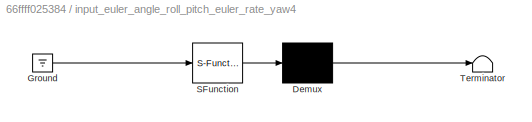
BLOCK [SubSystem] input_euler_angle_roll_pitch_euler_rate_yaw4
  ErrorFcn = Stateflow.Translate.translate
  PermitHierarchicalResolution = ExplicitOnly
  Ports = []
  RequestExecContextInheritance = off
  SFBlockType = MATLAB Function
  TreatAsAtomicUnit = on
BLOCK [Demux] input_euler_angle_roll_pitch_euler_rate_yaw4/ Demux 
  Outputs = 1
  Ports = [1, 1]
BLOCK [Ground] input_euler_angle_roll_pitch_euler_rate_yaw4/ Ground 
BLOCK [S-Function] input_euler_angle_roll_pitch_euler_rate_yaw4/ SFunction 
  EnableBusSupport = on
  FunctionName = sf_sfun
  PortCounts = [1 1]
  Ports = [1, 1]
  SFcnIsStateOwnerBlock = off
  SFunctionDeploymentMode = off
  Tag = Stateflow S-Function 10
BLOCK [Terminator] input_euler_angle_roll_pitch_euler_rate_yaw4/ Terminator 
BLOCK [DataStoreMemory] input_tc1
  DataStoreName = input_tc
  InitialValue = input_tc
  OutDataTypeStr = double
  ReadBeforeWriteMsg = warning
  ShowAdditionalParam = off
  SignalType = real
  VectorParams1D = off
  WriteAfterReadMsg = warning
  WriteAfterWriteMsg = warning
BLOCK [DataStoreMemory] integDTAS_state1
  DataStoreName = integDTAS_state
  InitialValue = integDTAS_state
  OutDataTypeStr = double
  ReadBeforeWriteMsg = warning
  ShowAdditionalParam = off
  SignalType = real
  VectorParams1D = off
  WriteAfterReadMsg = warning
  WriteAfterWriteMsg = warning
BLOCK [DataStoreMemory] integGain1
  DataStoreName = integGain
  InitialValue = integGain
  OutDataTypeStr = double
  ReadBeforeWriteMsg = warning
  ShowAdditionalParam = off
  SignalType = real
  VectorParams1D = off
  WriteAfterReadMsg = warning
  WriteAfterWriteMsg = warning
BLOCK [DataStoreMemory] integSEB_state1
  DataStoreName = integSEB_state
  InitialValue = integSEB_state
  OutDataTypeStr = double
  ReadBeforeWriteMsg = warning
  ShowAdditionalParam = off
  SignalType = real
  VectorParams1D = off
  WriteAfterReadMsg = warning
  WriteAfterWriteMsg = warning
BLOCK [DataStoreMemory] integTHR_state1
  DataStoreName = integTHR_state
  InitialValue = integTHR_state
  OutDataTypeStr = double
  ReadBeforeWriteMsg = warning
  ShowAdditionalParam = off
  SignalType = real
  VectorParams1D = off
  WriteAfterReadMsg = warning
  WriteAfterWriteMsg = warning
BLOCK [DataStoreMemory] integrator_yaw1
  DataStoreName = integrator_yaw
  InitialValue = integrator_yaw
  OutDataTypeStr = double
  ReadBeforeWriteMsg = warning
  ShowAdditionalParam = off
  SignalType = real
  WriteAfterReadMsg = warning
  WriteAfterWriteMsg = warning
BLOCK [DataStoreMemory] inverted_flight1
  DataStoreName = inverted_flight
  InitialValue = inverted_flight
  OutDataTypeStr = double
  ReadBeforeWriteMsg = warning
  ShowAdditionalParam = off
  SignalType = real
  WriteAfterReadMsg = warning
  WriteAfterWriteMsg = warning
BLOCK [DataStoreMemory] is_active_xy1
  DataStoreName = is_active_xy
  InitialValue = is_active_xy
  OutDataTypeStr = double
  ReadBeforeWriteMsg = warning
  ShowAdditionalParam = off
  SignalType = real
  VectorParams1D = off
  WriteAfterReadMsg = warning
  WriteAfterWriteMsg = warning
BLOCK [DataStoreMemory] is_active_z1
  DataStoreName = is_active_z
  InitialValue = is_active_z
  OutDataTypeStr = double
  ReadBeforeWriteMsg = warning
  ShowAdditionalParam = off
  SignalType = real
  VectorParams1D = off
  WriteAfterReadMsg = warning
  WriteAfterWriteMsg = warning
BLOCK [DataStoreMemory] k_aileron1
  DataStoreName = k_aileron
  InitialValue = k_aileron
  OutDataTypeStr = double
  ReadBeforeWriteMsg = warning
  ShowAdditionalParam = off
  SignalType = real
  WriteAfterReadMsg = warning
  WriteAfterWriteMsg = warning
BLOCK [DataStoreMemory] k_elevator1
  DataStoreName = k_elevator
  InitialValue = k_elevator
  OutDataTypeStr = double
  ReadBeforeWriteMsg = warning
  ShowAdditionalParam = off
  SignalType = real
  WriteAfterReadMsg = warning
  WriteAfterWriteMsg = warning
BLOCK [DataStoreMemory] k_rudder1
  DataStoreName = k_rudder
  InitialValue = k_rudder
  OutDataTypeStr = double
  ReadBeforeWriteMsg = warning
  ShowAdditionalParam = off
  SignalType = real
  WriteAfterReadMsg = warning
  WriteAfterWriteMsg = warning
BLOCK [DataStoreMemory] k_throttle1
  DataStoreName = k_throttle
  InitialValue = k_throttle
  OutDataTypeStr = double
  ReadBeforeWriteMsg = warning
  ShowAdditionalParam = off
  SignalType = real
  WriteAfterReadMsg = warning
  WriteAfterWriteMsg = warning
BLOCK [DataStoreMemory] k_throttle_c2p
  DataStoreName = k_throttle_c2p
  InitialValue = k_throttle_c2p
  OutDataTypeStr = double
  ReadBeforeWriteMsg = warning
  ShowAdditionalParam = off
  SignalType = real
  VectorParams1D = off
  WriteAfterReadMsg = warning
  WriteAfterWriteMsg = warning
BLOCK [DataStoreMemory] kff_rudder_mix1
  DataStoreName = kff_rudder_mix
  InitialValue = kff_rudder_mix
  OutDataTypeStr = double
  ReadBeforeWriteMsg = warning
  ShowAdditionalParam = off
  SignalType = real
  WriteAfterReadMsg = warning
  WriteAfterWriteMsg = warning
BLOCK [DataStoreMemory] kff_throttle_to_pitch1
  DataStoreName = kff_throttle_to_pitch
  InitialValue = kff_throttle_to_pitch
  OutDataTypeStr = double
  ReadBeforeWriteMsg = warning
  ShowAdditionalParam = off
  SignalType = real
  WriteAfterReadMsg = warning
  WriteAfterWriteMsg = warning
BLOCK [DataStoreMemory] last_Nu1
  DataStoreName = last_Nu
  InitialValue = last_Nu
  OutDataTypeStr = double
  ReadBeforeWriteMsg = warning
  ShowAdditionalParam = off
  SignalType = real
  VectorParams1D = off
  WriteAfterReadMsg = warning
  WriteAfterWriteMsg = warning
BLOCK [DataStoreMemory] last_out_pitch1
  DataStoreName = last_out_pitch
  InitialValue = last_out_pitch
  OutDataTypeStr = double
  ReadBeforeWriteMsg = warning
  ShowAdditionalParam = off
  SignalType = real
  WriteAfterReadMsg = warning
  WriteAfterWriteMsg = warning
BLOCK [DataStoreMemory] last_out_roll1
  DataStoreName = last_out_roll
  InitialValue = last_out_roll
  OutDataTypeStr = double
  ReadBeforeWriteMsg = warning
  ShowAdditionalParam = off
  SignalType = real
  WriteAfterReadMsg = warning
  WriteAfterWriteMsg = warning
BLOCK [DataStoreMemory] last_out_yaw1
  DataStoreName = last_out_yaw
  InitialValue = last_out_yaw
  OutDataTypeStr = double
  ReadBeforeWriteMsg = warning
  ShowAdditionalParam = off
  SignalType = real
  WriteAfterReadMsg = warning
  WriteAfterWriteMsg = warning
BLOCK [DataStoreMemory] last_pitch_dem1
  DataStoreName = last_pitch_dem
  InitialValue = last_pitch_dem
  OutDataTypeStr = double
  ReadBeforeWriteMsg = warning
  ShowAdditionalParam = off
  SignalType = real
  VectorParams1D = off
  WriteAfterReadMsg = warning
  WriteAfterWriteMsg = warning
BLOCK [DataStoreMemory] last_rate_hp_in_yaw1
  DataStoreName = last_rate_hp_in_yaw
  InitialValue = last_rate_hp_in_yaw
  OutDataTypeStr = double
  ReadBeforeWriteMsg = warning
  ShowAdditionalParam = off
  SignalType = real
  WriteAfterReadMsg = warning
  WriteAfterWriteMsg = warning
BLOCK [DataStoreMemory] last_rate_hp_out_yaw1
  DataStoreName = last_rate_hp_out_yaw
  InitialValue = last_rate_hp_out_yaw
  OutDataTypeStr = double
  ReadBeforeWriteMsg = warning
  ShowAdditionalParam = off
  SignalType = real
  WriteAfterReadMsg = warning
  WriteAfterWriteMsg = warning
BLOCK [DataStoreMemory] last_throttle_dem1
  DataStoreName = last_throttle_dem
  InitialValue = last_throttle_dem
  OutDataTypeStr = double
  ReadBeforeWriteMsg = warning
  ShowAdditionalParam = off
  SignalType = real
  VectorParams1D = off
  WriteAfterReadMsg = warning
  WriteAfterWriteMsg = warning
BLOCK [DataStoreMemory] latAccDem1
  DataStoreName = latAccDem
  InitialValue = latAccDem
  OutDataTypeStr = double
  ReadBeforeWriteMsg = warning
  ShowAdditionalParam = off
  SignalType = real
  VectorParams1D = off
  WriteAfterReadMsg = warning
  WriteAfterWriteMsg = warning
BLOCK [DataStoreMemory] leash1
  DataStoreName = leash
  InitialValue = POSCONTROL_LEASH_LENGTH_MIN
  OutDataTypeStr = double
  ReadBeforeWriteMsg = warning
  ShowAdditionalParam = off
  SignalType = real
  WriteAfterReadMsg = warning
  WriteAfterWriteMsg = warning
BLOCK [DataStoreMemory] leash_down_z1
  DataStoreName = leash_down_z
  InitialValue = POSCONTROL_LEASH_LENGTH_MIN
  OutDataTypeStr = double
  ReadBeforeWriteMsg = warning
  ShowAdditionalParam = off
  SignalType = real
  WriteAfterReadMsg = warning
  WriteAfterWriteMsg = warning
BLOCK [DataStoreMemory] leash_up_z1
  DataStoreName = leash_up_z
  InitialValue = POSCONTROL_LEASH_LENGTH_MIN
  OutDataTypeStr = double
  ReadBeforeWriteMsg = warning
  ShowAdditionalParam = off
  SignalType = real
  WriteAfterReadMsg = warning
  WriteAfterWriteMsg = warning
BLOCK [DataStoreMemory] limit_accel_xy1
  DataStoreName = limit_accel_xy
  InitialValue = limit_accel_xy
  OutDataTypeStr = double
  ReadBeforeWriteMsg = warning
  ShowAdditionalParam = off
  SignalType = real
  VectorParams1D = off
  WriteAfterReadMsg = warning
  WriteAfterWriteMsg = warning
BLOCK [DataStoreMemory] limit_pos_down1
  DataStoreName = limit_pos_down
  InitialValue = limit_pos_down
  OutDataTypeStr = double
  ReadBeforeWriteMsg = warning
  ShowAdditionalParam = off
  SignalType = real
  VectorParams1D = off
  WriteAfterReadMsg = warning
  WriteAfterWriteMsg = warning
BLOCK [DataStoreMemory] limit_pos_up1
  DataStoreName = limit_pos_up
  InitialValue = limit_pos_up
  OutDataTypeStr = double
  ReadBeforeWriteMsg = warning
  ShowAdditionalParam = off
  SignalType = real
  VectorParams1D = off
  WriteAfterReadMsg = warning
  WriteAfterWriteMsg = warning
BLOCK [DataStoreMemory] limit_roll_pitch1
  DataStoreName = limit_roll_pitch
  InitialValue = limit_roll_pitch
  OutDataTypeStr = double
  ReadBeforeWriteMsg = warning
  ShowAdditionalParam = off
  SignalType = real
  VectorParams1D = off
  WriteAfterReadMsg = warning
  WriteAfterWriteMsg = warning
BLOCK [DataStoreMemory] limit_vel_down1
  DataStoreName = limit_vel_down
  InitialValue = limit_vel_down
  OutDataTypeStr = double
  ReadBeforeWriteMsg = warning
  ShowAdditionalParam = off
  SignalType = real
  VectorParams1D = off
  WriteAfterReadMsg = warning
  WriteAfterWriteMsg = warning
BLOCK [DataStoreMemory] limit_vel_up1
  DataStoreName = limit_vel_up
  InitialValue = limit_vel_up
  OutDataTypeStr = double
  ReadBeforeWriteMsg = warning
  ShowAdditionalParam = off
  SignalType = real
  WriteAfterReadMsg = warning
  WriteAfterWriteMsg = warning
BLOCK [DataStoreMemory] limit_yaw1
  DataStoreName = limit_yaw
  InitialValue = limit_yaw
  OutDataTypeStr = double
  ReadBeforeWriteMsg = warning
  ShowAdditionalParam = off
  SignalType = real
  VectorParams1D = off
  WriteAfterReadMsg = warning
  WriteAfterWriteMsg = warning
BLOCK [DataStoreMemory] loc1
  DataStoreName = loc
  InitialValue = loc
  OutDataTypeStr = Bus: Bus_wp
  ReadBeforeWriteMsg = warning
  ShowAdditionalParam = off
  SignalType = real
  VectorParams1D = off
  WriteAfterReadMsg = warning
  WriteAfterWriteMsg = warning
BLOCK [DataStoreMemory] loc_origin1
  DataStoreName = loc_origin
  InitialValue = loc_origin
  OutDataTypeStr = double
  ReadBeforeWriteMsg = warning
  ShowAdditionalParam = off
  SignalType = real
  VectorParams1D = off
  WriteAfterReadMsg = warning
  WriteAfterWriteMsg = warning
BLOCK [DataStoreMemory] loiter_bank_limit1
  DataStoreName = loiter_bank_limit
  InitialValue = loiter_bank_limit
  OutDataTypeStr = double
  ReadBeforeWriteMsg = warning
  ShowAdditionalParam = off
  SignalType = real
  VectorParams1D = off
  WriteAfterReadMsg = warning
  WriteAfterWriteMsg = warning
BLOCK [DataStoreMemory] loiter_direction1
  DataStoreName = loiter_direction
  InitialValue = loiter_direction
  OutDataTypeStr = double
  ReadBeforeWriteMsg = warning
  ShowAdditionalParam = off
  SignalType = real
  VectorParams1D = off
  WriteAfterReadMsg = warning
  WriteAfterWriteMsg = warning
BLOCK [DataStoreMemory] maxClimbRate1
  DataStoreName = maxClimbRate
  InitialValue = maxClimbRate
  OutDataTypeStr = double
  ReadBeforeWriteMsg = warning
  ShowAdditionalParam = off
  SignalType = real
  VectorParams1D = off
  WriteAfterReadMsg = warning
  WriteAfterWriteMsg = warning
BLOCK [DataStoreMemory] maxSinkRate1
  DataStoreName = maxSinkRate
  InitialValue = maxSinkRate
  OutDataTypeStr = double
  ReadBeforeWriteMsg = warning
  ShowAdditionalParam = off
  SignalType = real
  VectorParams1D = off
  WriteAfterReadMsg = warning
  WriteAfterWriteMsg = warning
BLOCK [DataStoreMemory] max_rate_neg1
  DataStoreName = max_rate_neg
  InitialValue = max_rate_neg
  OutDataTypeStr = double
  ReadBeforeWriteMsg = warning
  ShowAdditionalParam = off
  SignalType = real
  WriteAfterReadMsg = warning
  WriteAfterWriteMsg = warning
BLOCK [DataStoreMemory] minSinkRate1
  DataStoreName = minSinkRate
  InitialValue = minSinkRate
  OutDataTypeStr = double
  ReadBeforeWriteMsg = warning
  ShowAdditionalParam = off
  SignalType = real
  VectorParams1D = off
  WriteAfterReadMsg = warning
  WriteAfterWriteMsg = warning
BLOCK [DataStoreMemory] mode1
  DataStoreName = mode
  InitialValue = mode
  OutDataTypeStr = double
  ReadBeforeWriteMsg = warning
  ShowAdditionalParam = off
  SignalType = real
  VectorParams1D = off
  WriteAfterReadMsg = warning
  WriteAfterWriteMsg = warning
BLOCK [DataStoreMemory] mode_L2
  DataStoreName = mode_L1
  InitialValue = mode_L1
  OutDataTypeStr = double
  ReadBeforeWriteMsg = warning
  ShowAdditionalParam = off
  SignalType = real
  VectorParams1D = off
  WriteAfterReadMsg = warning
  WriteAfterWriteMsg = warning
BLOCK [DataStoreMemory] motors_limit_roll_pitch1
  DataStoreName = motors_limit_roll_pitch
  InitialValue = motors_limit_roll_pitch
  OutDataTypeStr = double
  ReadBeforeWriteMsg = warning
  ShowAdditionalParam = off
  SignalType = real
  VectorParams1D = off
  WriteAfterReadMsg = warning
  WriteAfterWriteMsg = warning
BLOCK [DataStoreMemory] motors_limit_throttle_upper1
  DataStoreName = motors_limit_throttle_upper
  InitialValue = motors_limit_throttle_upper
  OutDataTypeStr = double
  ReadBeforeWriteMsg = warning
  ShowAdditionalParam = off
  SignalType = real
  VectorParams1D = off
  WriteAfterReadMsg = warning
  WriteAfterWriteMsg = warning
BLOCK [DataStoreMemory] motors_limit_yaw1
  DataStoreName = motors_limit_yaw
  InitialValue = motors_limit_yaw
  OutDataTypeStr = double
  ReadBeforeWriteMsg = warning
  ShowAdditionalParam = off
  SignalType = real
  VectorParams1D = off
  WriteAfterReadMsg = warning
  WriteAfterWriteMsg = warning
BLOCK [DataStoreMemory] nav_bearing1
  DataStoreName = nav_bearing
  InitialValue = nav_bearing
  OutDataTypeStr = double
  ReadBeforeWriteMsg = warning
  ShowAdditionalParam = off
  SignalType = real
  VectorParams1D = off
  WriteAfterReadMsg = warning
  WriteAfterWriteMsg = warning
BLOCK [DataStoreMemory] nav_pitch_cd1
  DataStoreName = nav_pitch_cd
  InitialValue = nav_pitch_cd
  OutDataTypeStr = double
  ReadBeforeWriteMsg = warning
  ShowAdditionalParam = off
  SignalType = real
  WriteAfterReadMsg = warning
  WriteAfterWriteMsg = warning
BLOCK [DataStoreMemory] nav_roll_cd1
  DataStoreName = nav_roll_cd
  InitialValue = nav_roll_cd
  OutDataTypeStr = double
  ReadBeforeWriteMsg = warning
  ShowAdditionalParam = off
  SignalType = real
  WriteAfterReadMsg = warning
  WriteAfterWriteMsg = warning
BLOCK [DataStoreMemory] next_WP1
  DataStoreName = next_WP
  InitialValue = next_WP
  OutDataTypeStr = double
  ReadBeforeWriteMsg = warning
  ShowAdditionalParam = off
  SignalType = real
  VectorParams1D = off
  WriteAfterReadMsg = warning
  WriteAfterWriteMsg = warning
BLOCK [DataStoreMemory] p_angle_pitch1
  DataStoreName = p_angle_pitch
  InitialValue = p_angle_pitch
  OutDataTypeStr = double
  ReadBeforeWriteMsg = warning
  ShowAdditionalParam = off
  SignalType = real
  VectorParams1D = off
  WriteAfterReadMsg = warning
  WriteAfterWriteMsg = warning
BLOCK [DataStoreMemory] p_angle_roll1
  DataStoreName = p_angle_roll
  InitialValue = p_angle_roll
  OutDataTypeStr = double
  ReadBeforeWriteMsg = warning
  ShowAdditionalParam = off
  SignalType = real
  WriteAfterReadMsg = warning
  WriteAfterWriteMsg = warning
BLOCK [DataStoreMemory] p_angle_yaw1
  DataStoreName = p_angle_yaw
  InitialValue = p_angle_yaw
  OutDataTypeStr = double
  ReadBeforeWriteMsg = warning
  ShowAdditionalParam = off
  SignalType = real
  WriteAfterReadMsg = warning
  WriteAfterWriteMsg = warning
BLOCK [DataStoreMemory] p_ff_throttle1
  DataStoreName = p_ff_throttle
  InitialValue = p_ff_throttle
  OutDataTypeStr = double
  ReadBeforeWriteMsg = warning
  ShowAdditionalParam = off
  SignalType = real
  VectorParams1D = off
  WriteAfterReadMsg = warning
  WriteAfterWriteMsg = warning
BLOCK [DataStoreMemory] p_plane_c2p1
  DataStoreName = p_plane_c2p
  InitialValue = p_plane_c2p
  OutDataTypeStr = double
  ReadBeforeWriteMsg = warning
  ShowAdditionalParam = off
  SignalType = real
  VectorParams1D = off
  WriteAfterReadMsg = warning
  WriteAfterWriteMsg = warning
BLOCK [DataStoreMemory] p_plane_cp1
  DataStoreName = p_plane_cp
  InitialValue = p_plane_cp
  OutDataTypeStr = double
  ReadBeforeWriteMsg = warning
  ShowAdditionalParam = off
  SignalType = real
  VectorParams1D = off
  WriteAfterReadMsg = warning
  WriteAfterWriteMsg = warning
BLOCK [DataStoreMemory] p_tail_tilt1
  DataStoreName = p_tail_tilt
  InitialValue = p_tail_tilt
  OutDataTypeStr = double
  ReadBeforeWriteMsg = warning
  ShowAdditionalParam = off
  SignalType = real
  VectorParams1D = off
  WriteAfterReadMsg = warning
  WriteAfterWriteMsg = warning
BLOCK [DataStoreMemory] p_tilt_pitch_target1
  DataStoreName = p_tilt_pitch_target
  InitialValue = p_tilt_pitch_target
  OutDataTypeStr = double
  ReadBeforeWriteMsg = warning
  ShowAdditionalParam = off
  SignalType = real
  VectorParams1D = off
  WriteAfterReadMsg = warning
  WriteAfterWriteMsg = warning
BLOCK [DataStoreMemory] pid_accel_z_derivative1
  DataStoreName = pid_accel_z_derivative
  InitialValue = pid_accel_z_derivative
  OutDataTypeStr = double
  ReadBeforeWriteMsg = warning
  ShowAdditionalParam = off
  SignalType = real
  VectorParams1D = off
  WriteAfterReadMsg = warning
  WriteAfterWriteMsg = warning
BLOCK [DataStoreMemory] pid_accel_z_input1
  DataStoreName = pid_accel_z_input
  InitialValue = pid_accel_z_input
  OutDataTypeStr = double
  ReadBeforeWriteMsg = warning
  ShowAdditionalParam = off
  SignalType = real
  VectorParams1D = off
  WriteAfterReadMsg = warning
  WriteAfterWriteMsg = warning
BLOCK [DataStoreMemory] pid_accel_z_integrator1
  DataStoreName = pid_accel_z_integrator
  InitialValue = pid_accel_z_integrator
  OutDataTypeStr = double
  ReadBeforeWriteMsg = warning
  ShowAdditionalParam = off
  SignalType = real
  VectorParams1D = off
  WriteAfterReadMsg = warning
  WriteAfterWriteMsg = warning
BLOCK [DataStoreMemory] pid_accel_z_reset_filter1
  DataStoreName = pid_accel_z_reset_filter
  InitialValue = pid_accel_z_reset_filter
  OutDataTypeStr = double
  ReadBeforeWriteMsg = warning
  ShowAdditionalParam = off
  SignalType = real
  VectorParams1D = off
  WriteAfterReadMsg = warning
  WriteAfterWriteMsg = warning
BLOCK [DataStoreMemory] pid_info_D_pitch1
  DataStoreName = pid_info_D_pitch
  InitialValue = pid_info_D_pitch
  OutDataTypeStr = double
  ReadBeforeWriteMsg = warning
  ShowAdditionalParam = off
  SignalType = real
  WriteAfterReadMsg = warning
  WriteAfterWriteMsg = warning
BLOCK [DataStoreMemory] pid_info_D_roll1
  DataStoreName = pid_info_D_roll
  InitialValue = pid_info_D_roll
  OutDataTypeStr = double
  ReadBeforeWriteMsg = warning
  ShowAdditionalParam = off
  SignalType = real
  WriteAfterReadMsg = warning
  WriteAfterWriteMsg = warning
BLOCK [DataStoreMemory] pid_info_D_yaw1
  DataStoreName = pid_info_D_yaw
  InitialValue = pid_info_D_yaw
  OutDataTypeStr = double
  ReadBeforeWriteMsg = warning
  ShowAdditionalParam = off
  SignalType = real
  WriteAfterReadMsg = warning
  WriteAfterWriteMsg = warning
BLOCK [DataStoreMemory] pid_info_FF1
  DataStoreName = pid_info_FF_pitch
  InitialValue = pid_info_FF_pitch
  OutDataTypeStr = double
  ReadBeforeWriteMsg = warning
  ShowAdditionalParam = off
  SignalType = real
  WriteAfterReadMsg = warning
  WriteAfterWriteMsg = warning
BLOCK [DataStoreMemory] pid_info_FF_roll1
  DataStoreName = pid_info_FF_roll
  InitialValue = pid_info_FF_roll
  OutDataTypeStr = double
  ReadBeforeWriteMsg = warning
  ShowAdditionalParam = off
  SignalType = real
  WriteAfterReadMsg = warning
  WriteAfterWriteMsg = warning
BLOCK [DataStoreMemory] pid_info_I_pitch1
  DataStoreName = pid_info_I_pitch
  InitialValue = pid_info_I_pitch
  OutDataTypeStr = double
  ReadBeforeWriteMsg = warning
  ShowAdditionalParam = off
  SignalType = real
  WriteAfterReadMsg = warning
  WriteAfterWriteMsg = warning
BLOCK [DataStoreMemory] pid_info_I_roll1
  DataStoreName = pid_info_I_roll
  InitialValue = pid_info_I_roll
  OutDataTypeStr = double
  ReadBeforeWriteMsg = warning
  ShowAdditionalParam = off
  SignalType = real
  WriteAfterReadMsg = warning
  WriteAfterWriteMsg = warning
BLOCK [DataStoreMemory] pid_info_I_yaw1
  DataStoreName = pid_info_I_yaw
  InitialValue = pid_info_I_yaw
  OutDataTypeStr = double
  ReadBeforeWriteMsg = warning
  ShowAdditionalParam = off
  SignalType = real
  WriteAfterReadMsg = warning
  WriteAfterWriteMsg = warning
BLOCK [DataStoreMemory] pid_info_P_pitch1
  DataStoreName = pid_info_P_pitch
  InitialValue = pid_info_P_pitch
  OutDataTypeStr = double
  ReadBeforeWriteMsg = warning
  ShowAdditionalParam = off
  SignalType = real
  WriteAfterReadMsg = warning
  WriteAfterWriteMsg = warning
BLOCK [DataStoreMemory] pid_info_P_roll1
  DataStoreName = pid_info_P_roll
  InitialValue = pid_info_P_roll
  OutDataTypeStr = double
  ReadBeforeWriteMsg = warning
  ShowAdditionalParam = off
  SignalType = real
  WriteAfterReadMsg = warning
  WriteAfterWriteMsg = warning
BLOCK [DataStoreMemory] pid_info_actua_pitchl1
  DataStoreName = pid_info_actual_pitch
  InitialValue = pid_info_actual_pitch
  OutDataTypeStr = double
  ReadBeforeWriteMsg = warning
  ShowAdditionalParam = off
  SignalType = real
  WriteAfterReadMsg = warning
  WriteAfterWriteMsg = warning
BLOCK [DataStoreMemory] pid_info_actual_roll1
  DataStoreName = pid_info_actual_roll
  InitialValue = pid_info_actual_roll
  OutDataTypeStr = double
  ReadBeforeWriteMsg = warning
  ShowAdditionalParam = off
  SignalType = real
  WriteAfterReadMsg = warning
  WriteAfterWriteMsg = warning
BLOCK [DataStoreMemory] pid_info_desired_pitch1
  DataStoreName = pid_info_desired_pitch
  InitialValue = pid_info_desired_pitch
  OutDataTypeStr = double
  ReadBeforeWriteMsg = warning
  ShowAdditionalParam = off
  SignalType = real
  WriteAfterReadMsg = warning
  WriteAfterWriteMsg = warning
BLOCK [DataStoreMemory] pid_info_desired_roll1
  DataStoreName = pid_info_desired_roll
  InitialValue = pid_info_desired_roll
  OutDataTypeStr = double
  ReadBeforeWriteMsg = warning
  ShowAdditionalParam = off
  SignalType = real
  WriteAfterReadMsg = warning
  WriteAfterWriteMsg = warning
BLOCK [DataStoreMemory] pid_vel_xy_derivative1
  DataStoreName = pid_vel_xy_derivative
  InitialValue = pid_vel_xy_derivative
  OutDataTypeStr = double
  ReadBeforeWriteMsg = warning
  ShowAdditionalParam = off
  SignalType = real
  VectorParams1D = off
  WriteAfterReadMsg = warning
  WriteAfterWriteMsg = warning
BLOCK [DataStoreMemory] pid_vel_xy_input1
  DataStoreName = pid_vel_xy_input
  InitialValue = pid_vel_xy_input
  OutDataTypeStr = double
  ReadBeforeWriteMsg = warning
  ShowAdditionalParam = off
  SignalType = real
  VectorParams1D = off
  WriteAfterReadMsg = warning
  WriteAfterWriteMsg = warning
BLOCK [DataStoreMemory] pid_vel_xy_integrator1
  DataStoreName = pid_vel_xy_integrator
  InitialValue = pid_vel_xy_integrator
  OutDataTypeStr = double
  ReadBeforeWriteMsg = warning
  ShowAdditionalParam = off
  SignalType = real
  VectorParams1D = off
  WriteAfterReadMsg = warning
  WriteAfterWriteMsg = warning
BLOCK [DataStoreMemory] pid_vel_xy_reset_filter1
  DataStoreName = pid_vel_xy_reset_filter
  InitialValue = pid_vel_xy_reset_filter
  OutDataTypeStr = double
  ReadBeforeWriteMsg = warning
  ShowAdditionalParam = off
  SignalType = real
  VectorParams1D = off
  WriteAfterReadMsg = warning
  WriteAfterWriteMsg = warning
BLOCK [DataStoreMemory] pitch1
  DataStoreName = pitch
  InitialValue = pitch
  OutDataTypeStr = double
  ReadBeforeWriteMsg = warning
  ShowAdditionalParam = off
  SignalType = real
  WriteAfterReadMsg = warning
  WriteAfterWriteMsg = warning
BLOCK [DataStoreMemory] pitch_dem1
  DataStoreName = pitch_dem
  InitialValue = pitch_dem
  OutDataTypeStr = double
  ReadBeforeWriteMsg = warning
  ShowAdditionalParam = off
  SignalType = real
  VectorParams1D = off
  WriteAfterReadMsg = warning
  WriteAfterWriteMsg = warning
BLOCK [DataStoreMemory] pitch_dem_unc1
  DataStoreName = pitch_dem_unc
  InitialValue = pitch_dem_unc
  OutDataTypeStr = double
  ReadBeforeWriteMsg = warning
  ShowAdditionalParam = off
  SignalType = real
  VectorParams1D = off
  WriteAfterReadMsg = warning
  WriteAfterWriteMsg = warning
BLOCK [DataStoreMemory] pitch_factor1
  DataStoreName = pitch_factor
  InitialValue = pitch_factor
  OutDataTypeStr = double
  ReadBeforeWriteMsg = warning
  ShowAdditionalParam = off
  SignalType = real
  VectorParams1D = off
  WriteAfterReadMsg = warning
  WriteAfterWriteMsg = warning
BLOCK [DataStoreMemory] pitch_in1
  DataStoreName = pitch_in
  InitialValue = pitch_in
  OutDataTypeStr = double
  ReadBeforeWriteMsg = warning
  ShowAdditionalParam = off
  SignalType = real
  VectorParams1D = off
  WriteAfterReadMsg = warning
  WriteAfterWriteMsg = warning
BLOCK [DataStoreMemory] pitch_limit_max_cd1
  DataStoreName = pitch_limit_max_cd
  InitialValue = pitch_limit_max_cd
  OutDataTypeStr = double
  ReadBeforeWriteMsg = warning
  ShowAdditionalParam = off
  SignalType = real
  VectorParams1D = off
  WriteAfterReadMsg = warning
  WriteAfterWriteMsg = warning
BLOCK [DataStoreMemory] pitch_limit_min_cd1
  DataStoreName = pitch_limit_min_cd
  InitialValue = pitch_limit_min_cd
  OutDataTypeStr = double
  ReadBeforeWriteMsg = warning
  ShowAdditionalParam = off
  SignalType = real
  VectorParams1D = off
  WriteAfterReadMsg = warning
  WriteAfterWriteMsg = warning
BLOCK [DataStoreMemory] pitch_max1
  DataStoreName = pitch_max
  InitialValue = pitch_max
  OutDataTypeStr = double
  ReadBeforeWriteMsg = warning
  ShowAdditionalParam = off
  SignalType = real
  VectorParams1D = off
  WriteAfterReadMsg = warning
  WriteAfterWriteMsg = warning
BLOCK [DataStoreMemory] pitch_max_limit1
  DataStoreName = pitch_max_limit
  InitialValue = pitch_max_limit
  OutDataTypeStr = double
  ReadBeforeWriteMsg = warning
  ShowAdditionalParam = off
  SignalType = real
  VectorParams1D = off
  WriteAfterReadMsg = warning
  WriteAfterWriteMsg = warning
BLOCK [DataStoreMemory] pitch_min1
  DataStoreName = pitch_min
  InitialValue = pitch_min
  OutDataTypeStr = double
  ReadBeforeWriteMsg = warning
  ShowAdditionalParam = off
  SignalType = real
  VectorParams1D = off
  WriteAfterReadMsg = warning
  WriteAfterWriteMsg = warning
BLOCK [DataStoreMemory] pitch_target1
  DataStoreName = pitch_target
  InitialValue = pitch_target
  OutDataTypeStr = double
  ReadBeforeWriteMsg = warning
  ShowAdditionalParam = off
  SignalType = real
  VectorParams1D = off
  WriteAfterReadMsg = warning
  WriteAfterWriteMsg = warning
BLOCK [DataStoreMemory] pitch_target_c2p
  DataStoreName = pitch_target_c2p
  InitialValue = pitch_target_c2p
  OutDataTypeStr = double
  ReadBeforeWriteMsg = warning
  ShowAdditionalParam = off
  SignalType = real
  VectorParams1D = off
  WriteAfterReadMsg = warning
  WriteAfterWriteMsg = warning
BLOCK [DataStoreMemory] pitch_target_p2c
  DataStoreName = pitch_target_p2c
  InitialValue = pitch_target_p2c
  OutDataTypeStr = double
  ReadBeforeWriteMsg = warning
  ShowAdditionalParam = off
  SignalType = real
  VectorParams1D = off
  WriteAfterReadMsg = warning
  WriteAfterWriteMsg = warning
BLOCK [DataStoreMemory] pitch_target_pilot1
  DataStoreName = pitch_target_pilot
  InitialValue = pitch_target_pilot
  OutDataTypeStr = double
  ReadBeforeWriteMsg = warning
  ShowAdditionalParam = off
  SignalType = real
  VectorParams1D = off
  WriteAfterReadMsg = warning
  WriteAfterWriteMsg = warning
BLOCK [DataStoreMemory] plane_mode
  DataStoreName = plane_mode
  InitialValue = plane_mode
  OutDataTypeStr = Enum: ENUM_plane_mode
  ReadBeforeWriteMsg = warning
  ShowAdditionalParam = off
  SignalType = real
  VectorParams1D = off
  WriteAfterReadMsg = warning
  WriteAfterWriteMsg = warning
BLOCK [DataStoreMemory] pos_error1
  DataStoreName = pos_error
  InitialValue = pos_error
  OutDataTypeStr = double
  ReadBeforeWriteMsg = warning
  ShowAdditionalParam = off
  SignalType = real
  VectorParams1D = off
  WriteAfterReadMsg = warning
  WriteAfterWriteMsg = warning
BLOCK [DataStoreMemory] pos_target1
  DataStoreName = pos_target
  InitialValue = pos_target
  OutDataTypeStr = double
  ReadBeforeWriteMsg = warning
  ShowAdditionalParam = off
  SignalType = real
  VectorParams1D = off
  WriteAfterReadMsg = warning
  WriteAfterWriteMsg = warning
BLOCK [DataStoreMemory] prev_WP1
  DataStoreName = prev_WP
  InitialValue = prev_WP
  OutDataTypeStr = double
  ReadBeforeWriteMsg = warning
  ShowAdditionalParam = off
  SignalType = real
  VectorParams1D = off
  WriteAfterReadMsg = warning
  WriteAfterWriteMsg = warning
BLOCK [DataStoreMemory] ptchDamp1
  DataStoreName = ptchDamp
  InitialValue = ptchDamp
  OutDataTypeStr = double
  ReadBeforeWriteMsg = warning
  ShowAdditionalParam = off
  SignalType = real
  VectorParams1D = off
  WriteAfterReadMsg = warning
  WriteAfterWriteMsg = warning
BLOCK [DataStoreMemory] pwm_max1
  DataStoreName = pwm_max
  InitialValue = pwm_max
  OutDataTypeStr = double
  ReadBeforeWriteMsg = warning
  ShowAdditionalParam = off
  SignalType = real
  WriteAfterReadMsg = warning
  WriteAfterWriteMsg = warning
BLOCK [DataStoreMemory] pwm_min1
  DataStoreName = pwm_min
  InitialValue = pwm_min
  OutDataTypeStr = double
  ReadBeforeWriteMsg = warning
  ShowAdditionalParam = off
  SignalType = real
  WriteAfterReadMsg = warning
  WriteAfterWriteMsg = warning
BLOCK [DataStoreMemory] pwm_out1
  DataStoreName = pwm_out
  InitialValue = pwm_out
  OutDataTypeStr = double
  ReadBeforeWriteMsg = warning
  ShowAdditionalParam = off
  SignalType = real
  WriteAfterReadMsg = warning
  WriteAfterWriteMsg = warning
BLOCK [DataStoreMemory] pwm_tail
  DataStoreName = pwm_tail
  InitialValue = pwm_tail
  OutDataTypeStr = double
  ReadBeforeWriteMsg = warning
  ShowAdditionalParam = off
  SignalType = real
  VectorParams1D = off
  WriteAfterReadMsg = warning
  WriteAfterWriteMsg = warning
BLOCK [DataStoreMemory] radius1
  DataStoreName = radius
  InitialValue = radius
  OutDataTypeStr = double
  ReadBeforeWriteMsg = warning
  ShowAdditionalParam = off
  SignalType = real
  VectorParams1D = off
  WriteAfterReadMsg = warning
  WriteAfterWriteMsg = warning
BLOCK [DataStoreMemory] rate_bf_ff_enabled1
  DataStoreName = rate_bf_ff_enabled
  InitialValue = rate_bf_ff_enabled
  OutDataTypeStr = double
  ReadBeforeWriteMsg = warning
  ShowAdditionalParam = off
  SignalType = real
  WriteAfterReadMsg = warning
  WriteAfterWriteMsg = warning
BLOCK [DataStoreMemory] rate_pitch_pid_derivative1
  DataStoreName = rate_pitch_pid_derivative
  InitialValue = rate_pitch_pid_derivative
  OutDataTypeStr = double
  ReadBeforeWriteMsg = warning
  ShowAdditionalParam = off
  SignalType = real
  VectorParams1D = off
  WriteAfterReadMsg = warning
  WriteAfterWriteMsg = warning
BLOCK [DataStoreMemory] rate_pitch_pid_input1
  DataStoreName = rate_pitch_pid_input
  InitialValue = rate_pitch_pid_input
  OutDataTypeStr = double
  ReadBeforeWriteMsg = warning
  ShowAdditionalParam = off
  SignalType = real
  VectorParams1D = off
  WriteAfterReadMsg = warning
  WriteAfterWriteMsg = warning
BLOCK [DataStoreMemory] rate_pitch_pid_integrator1
  DataStoreName = rate_pitch_pid_integrator
  InitialValue = rate_pitch_pid_integrator
  OutDataTypeStr = double
  ReadBeforeWriteMsg = warning
  ShowAdditionalParam = off
  SignalType = real
  VectorParams1D = off
  WriteAfterReadMsg = warning
  WriteAfterWriteMsg = warning
BLOCK [DataStoreMemory] rate_pitch_pid_reset_filter1
  DataStoreName = rate_pitch_pid_reset_filter
  InitialValue = rate_pitch_pid_reset_filter
  OutDataTypeStr = double
  ReadBeforeWriteMsg = warning
  ShowAdditionalParam = off
  SignalType = real
  VectorParams1D = off
  WriteAfterReadMsg = warning
  WriteAfterWriteMsg = warning
BLOCK [DataStoreMemory] rate_roll_pid_derivative1
  DataStoreName = rate_roll_pid_derivative
  InitialValue = rate_roll_pid_derivative
  OutDataTypeStr = double
  ReadBeforeWriteMsg = warning
  ShowAdditionalParam = off
  SignalType = real
  VectorParams1D = off
  WriteAfterReadMsg = warning
  WriteAfterWriteMsg = warning
BLOCK [DataStoreMemory] rate_roll_pid_input1
  DataStoreName = rate_roll_pid_input
  InitialValue = rate_roll_pid_input
  OutDataTypeStr = double
  ReadBeforeWriteMsg = warning
  ShowAdditionalParam = off
  SignalType = real
  VectorParams1D = off
  WriteAfterReadMsg = warning
  WriteAfterWriteMsg = warning
BLOCK [DataStoreMemory] rate_roll_pid_integrator1
  DataStoreName = rate_roll_pid_integrator
  InitialValue = rate_roll_pid_integrator
  OutDataTypeStr = double
  ReadBeforeWriteMsg = warning
  ShowAdditionalParam = off
  SignalType = real
  VectorParams1D = off
  WriteAfterReadMsg = warning
  WriteAfterWriteMsg = warning
BLOCK [DataStoreMemory] rate_roll_pid_reset_filter1
  DataStoreName = rate_roll_pid_reset_filter
  InitialValue = rate_roll_pid_reset_filter
  OutDataTypeStr = double
  ReadBeforeWriteMsg = warning
  ShowAdditionalParam = off
  SignalType = real
  VectorParams1D = off
  WriteAfterReadMsg = warning
  WriteAfterWriteMsg = warning
BLOCK [DataStoreMemory] rate_target_ang_vel1
  DataStoreName = rate_target_ang_vel
  InitialValue = rate_target_ang_vel
  OutDataTypeStr = double
  ReadBeforeWriteMsg = warning
  ShowAdditionalParam = off
  SignalType = real
  VectorParams1D = off
  WriteAfterReadMsg = warning
  WriteAfterWriteMsg = warning
BLOCK [DataStoreMemory] rate_yaw_pid_derivative1
  DataStoreName = rate_yaw_pid_derivative
  InitialValue = rate_yaw_pid_derivative
  OutDataTypeStr = double
  ReadBeforeWriteMsg = warning
  ShowAdditionalParam = off
  SignalType = real
  VectorParams1D = off
  WriteAfterReadMsg = warning
  WriteAfterWriteMsg = warning
BLOCK [DataStoreMemory] rate_yaw_pid_input1
  DataStoreName = rate_yaw_pid_input
  InitialValue = rate_yaw_pid_input
  OutDataTypeStr = double
  ReadBeforeWriteMsg = warning
  ShowAdditionalParam = off
  SignalType = real
  VectorParams1D = off
  WriteAfterReadMsg = warning
  WriteAfterWriteMsg = warning
BLOCK [DataStoreMemory] rate_yaw_pid_integrator1
  DataStoreName = rate_yaw_pid_integrator
  InitialValue = rate_roll_pid_integrator
  OutDataTypeStr = double
  ReadBeforeWriteMsg = warning
  ShowAdditionalParam = off
  SignalType = real
  VectorParams1D = off
  WriteAfterReadMsg = warning
  WriteAfterWriteMsg = warning
BLOCK [DataStoreMemory] rate_yaw_pid_reset_filter1
  DataStoreName = rate_yaw_pid_reset_filter
  InitialValue = rate_yaw_pid_reset_filter
  OutDataTypeStr = double
  ReadBeforeWriteMsg = warning
  ShowAdditionalParam = off
  SignalType = real
  VectorParams1D = off
  WriteAfterReadMsg = warning
  WriteAfterWriteMsg = warning
BLOCK [DataStoreMemory] recalc_leash_xy1
  DataStoreName = recalc_leash_xy
  InitialValue = recalc_leash_xy
  OutDataTypeStr = double
  ReadBeforeWriteMsg = warning
  ShowAdditionalParam = off
  SignalType = real
  VectorParams1D = off
  WriteAfterReadMsg = warning
  WriteAfterWriteMsg = warning
BLOCK [DataStoreMemory] recalc_leash_z1
  DataStoreName = recalc_leash_z
  InitialValue = recalc_leash_z
  OutDataTypeStr = double
  ReadBeforeWriteMsg = warning
  ShowAdditionalParam = off
  SignalType = real
  WriteAfterReadMsg = warning
  WriteAfterWriteMsg = warning
BLOCK [DataStoreMemory] reset_accel_to_lean_xy1
  DataStoreName = reset_accel_to_lean_xy
  InitialValue = reset_accel_to_lean_xy
  OutDataTypeStr = double
  ReadBeforeWriteMsg = warning
  ShowAdditionalParam = off
  SignalType = real
  VectorParams1D = off
  WriteAfterReadMsg = warning
  WriteAfterWriteMsg = warning
BLOCK [DataStoreMemory] reset_accel_to_throttle1
  DataStoreName = reset_accel_to_throttle
  InitialValue = reset_accel_to_throttle
  OutDataTypeStr = double
  ReadBeforeWriteMsg = warning
  ShowAdditionalParam = off
  SignalType = real
  VectorParams1D = off
  WriteAfterReadMsg = warning
  WriteAfterWriteMsg = warning
BLOCK [DataStoreMemory] reset_desired_vel_to_pos1
  DataStoreName = reset_desired_vel_to_pos
  InitialValue = reset_desired_vel_to_pos
  OutDataTypeStr = double
  ReadBeforeWriteMsg = warning
  ShowAdditionalParam = off
  SignalType = real
  VectorParams1D = off
  WriteAfterReadMsg = warning
  WriteAfterWriteMsg = warning
BLOCK [DataStoreMemory] reset_rate_to_accel_z1
  DataStoreName = reset_rate_to_accel_z
  InitialValue = reset_rate_to_accel_z
  OutDataTypeStr = double
  ReadBeforeWriteMsg = warning
  ShowAdditionalParam = off
  SignalType = real
  VectorParams1D = off
  WriteAfterReadMsg = warning
  WriteAfterWriteMsg = warning
BLOCK [DataStoreMemory] reverse1
  DataStoreName = reverse
  InitialValue = reverse
  OutDataTypeStr = double
  ReadBeforeWriteMsg = warning
  ShowAdditionalParam = off
  SignalType = real
  VectorParams1D = off
  WriteAfterReadMsg = warning
  WriteAfterWriteMsg = warning
BLOCK [DataStoreMemory] roll1
  DataStoreName = roll
  InitialValue = roll
  OutDataTypeStr = double
  ReadBeforeWriteMsg = warning
  ShowAdditionalParam = off
  SignalType = real
  WriteAfterReadMsg = warning
  WriteAfterWriteMsg = warning
BLOCK [DataStoreMemory] rollComp1
  DataStoreName = rollComp
  InitialValue = rollComp
  OutDataTypeStr = double
  ReadBeforeWriteMsg = warning
  ShowAdditionalParam = off
  SignalType = real
  VectorParams1D = off
  WriteAfterReadMsg = warning
  WriteAfterWriteMsg = warning
BLOCK [DataStoreMemory] roll_factor1
  DataStoreName = roll_factor
  InitialValue = roll_factor
  OutDataTypeStr = double
  ReadBeforeWriteMsg = warning
  ShowAdditionalParam = off
  SignalType = real
  VectorParams1D = off
  WriteAfterReadMsg = warning
  WriteAfterWriteMsg = warning
BLOCK [DataStoreMemory] roll_ff_pitch1
  DataStoreName = roll_ff_pitch
  InitialValue = roll_ff_pitch
  OutDataTypeStr = double
  ReadBeforeWriteMsg = warning
  ShowAdditionalParam = off
  SignalType = real
  WriteAfterReadMsg = warning
  WriteAfterWriteMsg = warning
BLOCK [DataStoreMemory] roll_ff_pitch_inint1
  DataStoreName = roll_ff_pitch_inint
  InitialValue = roll_ff_pitch_inint
  OutDataTypeStr = double
  ReadBeforeWriteMsg = warning
  ShowAdditionalParam = off
  SignalType = real
  VectorParams1D = off
  WriteAfterReadMsg = warning
  WriteAfterWriteMsg = warning
BLOCK [DataStoreMemory] roll_in1
  DataStoreName = roll_in
  InitialValue = roll_in
  OutDataTypeStr = double
  ReadBeforeWriteMsg = warning
  ShowAdditionalParam = off
  SignalType = real
  VectorParams1D = off
  WriteAfterReadMsg = warning
  WriteAfterWriteMsg = warning
BLOCK [DataStoreMemory] roll_limit_cd1
  DataStoreName = roll_limit_cd
  InitialValue = roll_limit_cd
  OutDataTypeStr = double
  ReadBeforeWriteMsg = warning
  ShowAdditionalParam = off
  SignalType = real
  WriteAfterReadMsg = warning
  WriteAfterWriteMsg = warning
BLOCK [DataStoreMemory] roll_limit_cd_inint1
  DataStoreName = roll_limit_cd_inint
  InitialValue = roll_limit_cd_inint
  OutDataTypeStr = double
  ReadBeforeWriteMsg = warning
  ShowAdditionalParam = off
  SignalType = real
  WriteAfterReadMsg = warning
  WriteAfterWriteMsg = warning
BLOCK [DataStoreMemory] roll_target1
  DataStoreName = roll_target
  InitialValue = roll_target
  OutDataTypeStr = double
  ReadBeforeWriteMsg = warning
  ShowAdditionalParam = off
  SignalType = real
  VectorParams1D = off
  WriteAfterReadMsg = warning
  WriteAfterWriteMsg = warning
BLOCK [DataStoreMemory] roll_target_pilot1
  DataStoreName = roll_target_pilot
  InitialValue = roll_target_pilot
  OutDataTypeStr = double
  ReadBeforeWriteMsg = warning
  ShowAdditionalParam = off
  SignalType = real
  VectorParams1D = off
  WriteAfterReadMsg = warning
  WriteAfterWriteMsg = warning
BLOCK [DataStoreMemory] rot_body_to_ned1
  DataStoreName = rot_body_to_ned
  InitialValue = rot_body_to_ned
  OutDataTypeStr = double
  ReadBeforeWriteMsg = warning
  ShowAdditionalParam = off
  SignalType = real
  VectorParams1D = off
  WriteAfterReadMsg = warning
  WriteAfterWriteMsg = warning
BLOCK [DataStoreMemory] scaling_speed1
  DataStoreName = scaling_speed
  InitialValue = scaling_speed
  OutDataTypeStr = double
  ReadBeforeWriteMsg = warning
  ShowAdditionalParam = off
  SignalType = real
  WriteAfterReadMsg = warning
  WriteAfterWriteMsg = warning
BLOCK [DataStoreMemory] slew_yaw1
  DataStoreName = slew_yaw
  InitialValue = slew_yaw
  OutDataTypeStr = double
  ReadBeforeWriteMsg = warning
  ShowAdditionalParam = off
  SignalType = real
  VectorParams1D = off
  WriteAfterReadMsg = warning
  WriteAfterWriteMsg = warning
BLOCK [DataStoreMemory] smoothed_airspeed1
  DataStoreName = smoothed_airspeed
  InitialValue = smoothed_airspeed
  OutDataTypeStr = double
  ReadBeforeWriteMsg = warning
  ShowAdditionalParam = off
  SignalType = real
  WriteAfterReadMsg = warning
  WriteAfterWriteMsg = warning
BLOCK [DataStoreMemory] spdCompFiltOmega1
  DataStoreName = spdCompFiltOmega
  InitialValue = spdCompFiltOmega
  OutDataTypeStr = double
  ReadBeforeWriteMsg = warning
  ShowAdditionalParam = off
  SignalType = real
  VectorParams1D = off
  WriteAfterReadMsg = warning
  WriteAfterWriteMsg = warning
BLOCK [DataStoreMemory] spdWeight1
  DataStoreName = spdWeight
  InitialValue = spdWeight
  OutDataTypeStr = double
  ReadBeforeWriteMsg = warning
  ShowAdditionalParam = off
  SignalType = real
  VectorParams1D = off
  WriteAfterReadMsg = warning
  WriteAfterWriteMsg = warning
BLOCK [DataStoreMemory] tail_tilt1
  DataStoreName = tail_tilt
  InitialValue = tail_tilt
  OutDataTypeStr = double
  ReadBeforeWriteMsg = warning
  ShowAdditionalParam = off
  SignalType = real
  VectorParams1D = off
  WriteAfterReadMsg = warning
  WriteAfterWriteMsg = warning
BLOCK [DataStoreMemory] tail_tilt_c2p1
  DataStoreName = tail_tilt_c2p
  InitialValue = tail_tilt_c2p
  OutDataTypeStr = double
  ReadBeforeWriteMsg = warning
  ShowAdditionalParam = off
  SignalType = real
  VectorParams1D = off
  WriteAfterReadMsg = warning
  WriteAfterWriteMsg = warning
BLOCK [DataStoreMemory] tail_tilt_p2c1
  DataStoreName = tail_tilt_p2c
  InitialValue = tail_tilt_p2c
  OutDataTypeStr = double
  ReadBeforeWriteMsg = warning
  ShowAdditionalParam = off
  SignalType = real
  VectorParams1D = off
  WriteAfterReadMsg = warning
  WriteAfterWriteMsg = warning
BLOCK [DataStoreMemory] tail_tilt_rate1
  DataStoreName = tail_tilt_rate
  InitialValue = tail_tilt_rate
  OutDataTypeStr = double
  ReadBeforeWriteMsg = warning
  ShowAdditionalParam = off
  SignalType = real
  VectorParams1D = off
  WriteAfterReadMsg = warning
  WriteAfterWriteMsg = warning
BLOCK [DataStoreMemory] take_off_land
  DataStoreName = take_off_land
  InitialValue = take_off_land
  OutDataTypeStr = double
  ReadBeforeWriteMsg = warning
  ShowAdditionalParam = off
  SignalType = real
  VectorParams1D = off
  WriteAfterReadMsg = warning
  WriteAfterWriteMsg = warning
BLOCK [DataStoreMemory] target_bearing_cd1
  DataStoreName = target_bearing_cd
  InitialValue = target_bearing_cd
  OutDataTypeStr = double
  ReadBeforeWriteMsg = warning
  ShowAdditionalParam = off
  SignalType = real
  VectorParams1D = off
  WriteAfterReadMsg = warning
  WriteAfterWriteMsg = warning
BLOCK [DataStoreMemory] target_yaw_rate1
  DataStoreName = target_yaw_rate
  InitialValue = target_yaw_rate
  OutDataTypeStr = double
  ReadBeforeWriteMsg = warning
  ShowAdditionalParam = off
  SignalType = real
  VectorParams1D = off
  WriteAfterReadMsg = warning
  WriteAfterWriteMsg = warning
BLOCK [DataStoreMemory] thrDamp1
  DataStoreName = thrDamp
  InitialValue = thrDamp
  OutDataTypeStr = double
  ReadBeforeWriteMsg = warning
  ShowAdditionalParam = off
  SignalType = real
  VectorParams1D = off
  WriteAfterReadMsg = warning
  WriteAfterWriteMsg = warning
BLOCK [DataStoreMemory] thr_out_min
  DataStoreName = thr_out_min
  InitialValue = thr_out_min
  OutDataTypeStr = double
  ReadBeforeWriteMsg = warning
  ShowAdditionalParam = off
  SignalType = real
  VectorParams1D = off
  WriteAfterReadMsg = warning
  WriteAfterWriteMsg = warning
BLOCK [DataStoreMemory] throttle_avg_max1
  DataStoreName = throttle_avg_max
  InitialValue = throttle_avg_max
  OutDataTypeStr = double
  ReadBeforeWriteMsg = warning
  ShowAdditionalParam = off
  SignalType = real
  VectorParams1D = off
  WriteAfterReadMsg = warning
  WriteAfterWriteMsg = warning
BLOCK [DataStoreMemory] throttle_cruise1
  DataStoreName = throttle_cruise
  InitialValue = throttle_cruise
  OutDataTypeStr = double
  ReadBeforeWriteMsg = warning
  ShowAdditionalParam = off
  SignalType = real
  VectorParams1D = off
  WriteAfterReadMsg = warning
  WriteAfterWriteMsg = warning
BLOCK [DataStoreMemory] throttle_cutoff_frequency1
  DataStoreName = throttle_cutoff_frequency
  InitialValue = throttle_cutoff_frequency
  OutDataTypeStr = double
  ReadBeforeWriteMsg = warning
  ShowAdditionalParam = off
  SignalType = real
  VectorParams1D = off
  WriteAfterReadMsg = warning
  WriteAfterWriteMsg = warning
BLOCK [DataStoreMemory] throttle_dem1
  DataStoreName = throttle_dem
  InitialValue = throttle_dem
  OutDataTypeStr = double
  ReadBeforeWriteMsg = warning
  ShowAdditionalParam = off
  SignalType = real
  VectorParams1D = off
  WriteAfterReadMsg = warning
  WriteAfterWriteMsg = warning
BLOCK [DataStoreMemory] throttle_filter1
  DataStoreName = throttle_filter
  InitialValue = throttle_filter
  OutDataTypeStr = double
  ReadBeforeWriteMsg = warning
  ShowAdditionalParam = off
  SignalType = real
  VectorParams1D = off
  WriteAfterReadMsg = warning
  WriteAfterWriteMsg = warning
BLOCK [DataStoreMemory] throttle_ground
  DataStoreName = throttle_ground
  InitialValue = throttle_ground
  OutDataTypeStr = double
  ReadBeforeWriteMsg = warning
  ShowAdditionalParam = off
  SignalType = real
  VectorParams1D = off
  WriteAfterReadMsg = warning
  WriteAfterWriteMsg = warning
BLOCK [DataStoreMemory] throttle_hover1
  DataStoreName = throttle_hover
  InitialValue = throttle_hover
  OutDataTypeStr = double
  ReadBeforeWriteMsg = warning
  ShowAdditionalParam = off
  SignalType = real
  VectorParams1D = off
  WriteAfterReadMsg = warning
  WriteAfterWriteMsg = warning
BLOCK [DataStoreMemory] throttle_in1
  DataStoreName = throttle_in
  InitialValue = throttle_in
  OutDataTypeStr = double
  ReadBeforeWriteMsg = warning
  ShowAdditionalParam = off
  SignalType = real
  VectorParams1D = off
  WriteAfterReadMsg = warning
  WriteAfterWriteMsg = warning
BLOCK [DataStoreMemory] throttle_lower1
  DataStoreName = throttle_lower
  InitialValue = throttle_lower
  OutDataTypeStr = double
  ReadBeforeWriteMsg = warning
  ShowAdditionalParam = off
  SignalType = real
  VectorParams1D = off
  WriteAfterReadMsg = warning
  WriteAfterWriteMsg = warning
BLOCK [DataStoreMemory] throttle_max1
  DataStoreName = throttle_max
  InitialValue = throttle_max
  OutDataTypeStr = double
  ReadBeforeWriteMsg = warning
  ShowAdditionalParam = off
  SignalType = real
  VectorParams1D = off
  WriteAfterReadMsg = warning
  WriteAfterWriteMsg = warning
BLOCK [DataStoreMemory] throttle_min1
  DataStoreName = throttle_min
  InitialValue = throttle_min
  OutDataTypeStr = double
  ReadBeforeWriteMsg = warning
  ShowAdditionalParam = off
  SignalType = real
  VectorParams1D = off
  WriteAfterReadMsg = warning
  WriteAfterWriteMsg = warning
BLOCK [DataStoreMemory] throttle_off_rate
  DataStoreName = throttle_off_rate
  InitialValue = throttle_off_rate
  OutDataTypeStr = double
  ReadBeforeWriteMsg = warning
  ShowAdditionalParam = off
  SignalType = real
  VectorParams1D = off
  WriteAfterReadMsg = warning
  WriteAfterWriteMsg = warning
BLOCK [DataStoreMemory] throttle_rpy_mix1
  DataStoreName = throttle_rpy_mix
  InitialValue = throttle_rpy_mix
  OutDataTypeStr = double
  ReadBeforeWriteMsg = warning
  ShowAdditionalParam = off
  SignalType = real
  VectorParams1D = off
  WriteAfterReadMsg = warning
  WriteAfterWriteMsg = warning
BLOCK [DataStoreMemory] throttle_rpy_mix_desired1
  DataStoreName = throttle_rpy_mix_desired
  InitialValue = throttle_rpy_mix_desired
  OutDataTypeStr = double
  ReadBeforeWriteMsg = warning
  ShowAdditionalParam = off
  SignalType = real
  VectorParams1D = off
  WriteAfterReadMsg = warning
  WriteAfterWriteMsg = warning
BLOCK [DataStoreMemory] throttle_slewrate1
  DataStoreName = throttle_slewrate
  InitialValue = throttle_slewrate
  OutDataTypeStr = double
  ReadBeforeWriteMsg = warning
  ShowAdditionalParam = off
  SignalType = real
  VectorParams1D = off
  WriteAfterReadMsg = warning
  WriteAfterWriteMsg = warning
BLOCK [DataStoreMemory] throttle_thrust_max1
  DataStoreName = throttle_thrust_max
  InitialValue = throttle_thrust_max
  OutDataTypeStr = double
  ReadBeforeWriteMsg = warning
  ShowAdditionalParam = off
  SignalType = real
  VectorParams1D = off
  WriteAfterReadMsg = warning
  WriteAfterWriteMsg = warning
BLOCK [DataStoreMemory] throttle_upper1
  DataStoreName = throttle_upper
  InitialValue = throttle_upper
  OutDataTypeStr = double
  ReadBeforeWriteMsg = warning
  ShowAdditionalParam = off
  SignalType = real
  VectorParams1D = off
  WriteAfterReadMsg = warning
  WriteAfterWriteMsg = warning
BLOCK [DataStoreMemory] thrust_boost1
  DataStoreName = thrust_boost
  InitialValue = thrust_boost
  OutDataTypeStr = double
  ReadBeforeWriteMsg = warning
  ShowAdditionalParam = off
  SignalType = real
  VectorParams1D = off
  WriteAfterReadMsg = warning
  WriteAfterWriteMsg = warning
BLOCK [DataStoreMemory] thrust_boost_ratio1
  DataStoreName = thrust_boost_ratio
  InitialValue = thrust_boost_ratio
  OutDataTypeStr = double
  ReadBeforeWriteMsg = warning
  ShowAdditionalParam = off
  SignalType = real
  VectorParams1D = off
  WriteAfterReadMsg = warning
  WriteAfterWriteMsg = warning
BLOCK [DataStoreMemory] thrust_error_angle1
  DataStoreName = thrust_error_angle
  InitialValue = thrust_error_angle
  OutDataTypeStr = double
  ReadBeforeWriteMsg = warning
  ShowAdditionalParam = off
  SignalType = real
  VectorParams1D = off
  WriteAfterReadMsg = warning
  WriteAfterWriteMsg = warning
BLOCK [DataStoreMemory] thrust_rpyt_out1
  DataStoreName = thrust_rpyt_out
  InitialValue = thrust_rpyt_out
  OutDataTypeStr = double
  ReadBeforeWriteMsg = warning
  ShowAdditionalParam = off
  SignalType = real
  VectorParams1D = off
  WriteAfterReadMsg = warning
  WriteAfterWriteMsg = warning
BLOCK [DataStoreMemory] thrust_slew_time1
  DataStoreName = thrust_slew_time
  InitialValue = thrust_slew_time
  OutDataTypeStr = double
  ReadBeforeWriteMsg = warning
  ShowAdditionalParam = off
  SignalType = real
  VectorParams1D = off
  WriteAfterReadMsg = warning
  WriteAfterWriteMsg = warning
BLOCK [DataStoreMemory] timeConstant1
  DataStoreName = timeConstant
  InitialValue = timeConstant
  OutDataTypeStr = double
  ReadBeforeWriteMsg = warning
  ShowAdditionalParam = off
  SignalType = real
  VectorParams1D = off
  WriteAfterReadMsg = warning
  WriteAfterWriteMsg = warning
BLOCK [DataStoreMemory] use_desvel_ff_z1
  DataStoreName = use_desvel_ff_z
  InitialValue = use_desvel_ff_z
  OutDataTypeStr = double
  ReadBeforeWriteMsg = warning
  ShowAdditionalParam = off
  SignalType = real
  VectorParams1D = off
  WriteAfterReadMsg = warning
  WriteAfterWriteMsg = warning
BLOCK [DataStoreMemory] use_sqrt_controller1
  DataStoreName = use_sqrt_controller
  InitialValue = use_sqrt_controller
  OutDataTypeStr = double
  ReadBeforeWriteMsg = warning
  ShowAdditionalParam = off
  SignalType = real
  WriteAfterReadMsg = warning
  WriteAfterWriteMsg = warning
BLOCK [DataStoreMemory] vdot_filter1
  DataStoreName = vdot_filter
  InitialValue = vdot_filter
  OutDataTypeStr = double
  ReadBeforeWriteMsg = warning
  ShowAdditionalParam = off
  SignalType = real
  WriteAfterReadMsg = warning
  WriteAfterWriteMsg = warning
BLOCK [DataStoreMemory] vel_desired1
  DataStoreName = vel_desired
  InitialValue = vel_desired
  OutDataTypeStr = double
  ReadBeforeWriteMsg = warning
  ShowAdditionalParam = off
  SignalType = real
  VectorParams1D = off
  WriteAfterReadMsg = warning
  WriteAfterWriteMsg = warning
BLOCK [DataStoreMemory] vel_dot1
  DataStoreName = vel_dot
  InitialValue = vel_dot
  OutDataTypeStr = double
  ReadBeforeWriteMsg = warning
  ShowAdditionalParam = off
  SignalType = real
  VectorParams1D = off
  WriteAfterReadMsg = warning
  WriteAfterWriteMsg = warning
BLOCK [DataStoreMemory] vel_error1
  DataStoreName = vel_error
  InitialValue = vel_error
  OutDataTypeStr = double
  ReadBeforeWriteMsg = warning
  ShowAdditionalParam = off
  SignalType = real
  VectorParams1D = off
  WriteAfterReadMsg = warning
  WriteAfterWriteMsg = warning
BLOCK [DataStoreMemory] vel_error_input1
  DataStoreName = vel_error_input
  InitialValue = vel_error_input
  OutDataTypeStr = double
  ReadBeforeWriteMsg = warning
  ShowAdditionalParam = off
  SignalType = real
  VectorParams1D = off
  WriteAfterReadMsg = warning
  WriteAfterWriteMsg = warning
BLOCK [DataStoreMemory] vel_forward_gain1
  DataStoreName = vel_forward_gain
  InitialValue = vel_forward_gain
  OutDataTypeStr = double
  ReadBeforeWriteMsg = warning
  ShowAdditionalParam = off
  SignalType = real
  VectorParams1D = off
  WriteAfterReadMsg = warning
  WriteAfterWriteMsg = warning
BLOCK [DataStoreMemory] vel_forward_integrator
  DataStoreName = vel_forward_integrator
  InitialValue = vel_forward_integrator
  OutDataTypeStr = double
  ReadBeforeWriteMsg = warning
  ShowAdditionalParam = off
  SignalType = real
  VectorParams1D = off
  WriteAfterReadMsg = warning
  WriteAfterWriteMsg = warning
BLOCK [DataStoreMemory] vel_forward_last_pct1
  DataStoreName = vel_forward_last_pct
  InitialValue = vel_forward_last_pct
  OutDataTypeStr = double
  ReadBeforeWriteMsg = warning
  ShowAdditionalParam = off
  SignalType = real
  VectorParams1D = off
  WriteAfterReadMsg = warning
  WriteAfterWriteMsg = warning
BLOCK [DataStoreMemory] vel_forward_min_pitch1
  DataStoreName = vel_forward_min_pitch
  InitialValue = vel_forward_min_pitch
  OutDataTypeStr = double
  ReadBeforeWriteMsg = warning
  ShowAdditionalParam = off
  SignalType = real
  VectorParams1D = off
  WriteAfterReadMsg = warning
  WriteAfterWriteMsg = warning
BLOCK [DataStoreMemory] vel_forward_tail_tilt_max1
  DataStoreName = vel_forward_tail_tilt_max
  InitialValue = vel_forward_tail_tilt_max
  OutDataTypeStr = double
  ReadBeforeWriteMsg = warning
  ShowAdditionalParam = off
  SignalType = real
  VectorParams1D = off
  WriteAfterReadMsg = warning
  WriteAfterWriteMsg = warning
BLOCK [DataStoreMemory] vel_last1
  DataStoreName = vel_last
  InitialValue = vel_last
  OutDataTypeStr = double
  ReadBeforeWriteMsg = warning
  ShowAdditionalParam = off
  SignalType = real
  VectorParams1D = off
  WriteAfterReadMsg = warning
  WriteAfterWriteMsg = warning
BLOCK [DataStoreMemory] vel_target1
  DataStoreName = vel_target
  InitialValue = vel_target
  OutDataTypeStr = double
  ReadBeforeWriteMsg = warning
  ShowAdditionalParam = off
  SignalType = real
  VectorParams1D = off
  WriteAfterReadMsg = warning
  WriteAfterWriteMsg = warning
BLOCK [DataStoreMemory] vertAccLim1
  DataStoreName = vertAccLim
  InitialValue = vertAccLim
  OutDataTypeStr = double
  ReadBeforeWriteMsg = warning
  ShowAdditionalParam = off
  SignalType = real
  VectorParams1D = off
  WriteAfterReadMsg = warning
  WriteAfterWriteMsg = warning
BLOCK [DataStoreMemory] weathervane_gain1
  DataStoreName = weathervane_gain
  InitialValue = weathervane_gain
  OutDataTypeStr = double
  ReadBeforeWriteMsg = warning
  ShowAdditionalParam = off
  SignalType = real
  VectorParams1D = off
  WriteAfterReadMsg = warning
  WriteAfterWriteMsg = warning
BLOCK [DataStoreMemory] weathervane_last_output1
  DataStoreName = weathervane_last_output
  InitialValue = weathervane_last_output
  OutDataTypeStr = double
  ReadBeforeWriteMsg = warning
  ShowAdditionalParam = off
  SignalType = real
  VectorParams1D = off
  WriteAfterReadMsg = warning
  WriteAfterWriteMsg = warning
BLOCK [DataStoreMemory] weathervane_min_roll1
  DataStoreName = weathervane_min_roll
  InitialValue = weathervane_min_roll
  OutDataTypeStr = double
  ReadBeforeWriteMsg = warning
  ShowAdditionalParam = off
  SignalType = real
  VectorParams1D = off
  WriteAfterReadMsg = warning
  WriteAfterWriteMsg = warning
BLOCK [DataStoreMemory] yaw1
  DataStoreName = yaw
  InitialValue = yaw
  OutDataTypeStr = double
  ReadBeforeWriteMsg = warning
  ShowAdditionalParam = off
  SignalType = real
  VectorParams1D = off
  WriteAfterReadMsg = warning
  WriteAfterWriteMsg = warning
BLOCK [DataStoreMemory] yaw_factor1
  DataStoreName = yaw_factor
  InitialValue = yaw_factor
  OutDataTypeStr = double
  ReadBeforeWriteMsg = warning
  ShowAdditionalParam = off
  SignalType = real
  VectorParams1D = off
  WriteAfterReadMsg = warning
  WriteAfterWriteMsg = warning
BLOCK [DataStoreMemory] yaw_headroom1
  DataStoreName = yaw_headroom
  InitialValue = yaw_headroom
  OutDataTypeStr = double
  ReadBeforeWriteMsg = warning
  ShowAdditionalParam = off
  SignalType = real
  VectorParams1D = off
  WriteAfterReadMsg = warning
  WriteAfterWriteMsg = warning
BLOCK [DataStoreMemory] yaw_in1
  DataStoreName = yaw_in
  InitialValue = yaw_in
  OutDataTypeStr = double
  ReadBeforeWriteMsg = warning
  ShowAdditionalParam = off
  SignalType = real
  VectorParams1D = off
  WriteAfterReadMsg = warning
  WriteAfterWriteMsg = warning
BLOCK [DataStoreMemory] yaw_in_max
  DataStoreName = yaw_in_max
  InitialValue = yaw_in_max
  OutDataTypeStr = double
  ReadBeforeWriteMsg = warning
  ShowAdditionalParam = off
  SignalType = real
  VectorParams1D = off
  WriteAfterReadMsg = warning
  WriteAfterWriteMsg = warning
BLOCK [DataStoreMemory] yaw_max_c2p1
  DataStoreName = yaw_max_c2p
  InitialValue = yaw_max_c2p
  OutDataTypeStr = double
  ReadBeforeWriteMsg = warning
  ShowAdditionalParam = off
  SignalType = real
  VectorParams1D = off
  WriteAfterReadMsg = warning
  WriteAfterWriteMsg = warning
BLOCK [DataStoreMemory] yaw_rate_max1
  DataStoreName = yaw_rate_max
  InitialValue = yaw_rate_max
  OutDataTypeStr = double
  ReadBeforeWriteMsg = warning
  ShowAdditionalParam = off
  SignalType = real
  VectorParams1D = off
  WriteAfterReadMsg = warning
  WriteAfterWriteMsg = warning
BLOCK [DataStoreMemory] z_accel_meas1
  DataStoreName = z_accel_meas
  InitialValue = z_accel_meas
  OutDataTypeStr = double
  ReadBeforeWriteMsg = warning
  ShowAdditionalParam = off
  SignalType = real
  VectorParams1D = off
  WriteAfterReadMsg = warning
  WriteAfterWriteMsg = warning
CHART input_euler_angle_roll_pitch_euler_rate_yaw4 states=1 transitions=1
  STATE_LABEL 'eML_blk_kernel()'
  STATE_LABEL 'SCRIPT:\nfunction copter_plane_run\nglobal plane_mode\n%     switch plane_mode\n%         case ENUM_plane_mode.V1000\n%             run_V1000();\n%         case ENUM_plane_mode.V10\n%             run_V10();\n%         case ENUM_plane_mode.V10s\n%             run_V10s();\n%         otherwise\n%             run_V10();\n%     end \n    switch plane_mode\n        case ENUM_plane_mode.V1000\n            run_V1000();\n...<+169ch>'
CHART  states=0 transitions=0
